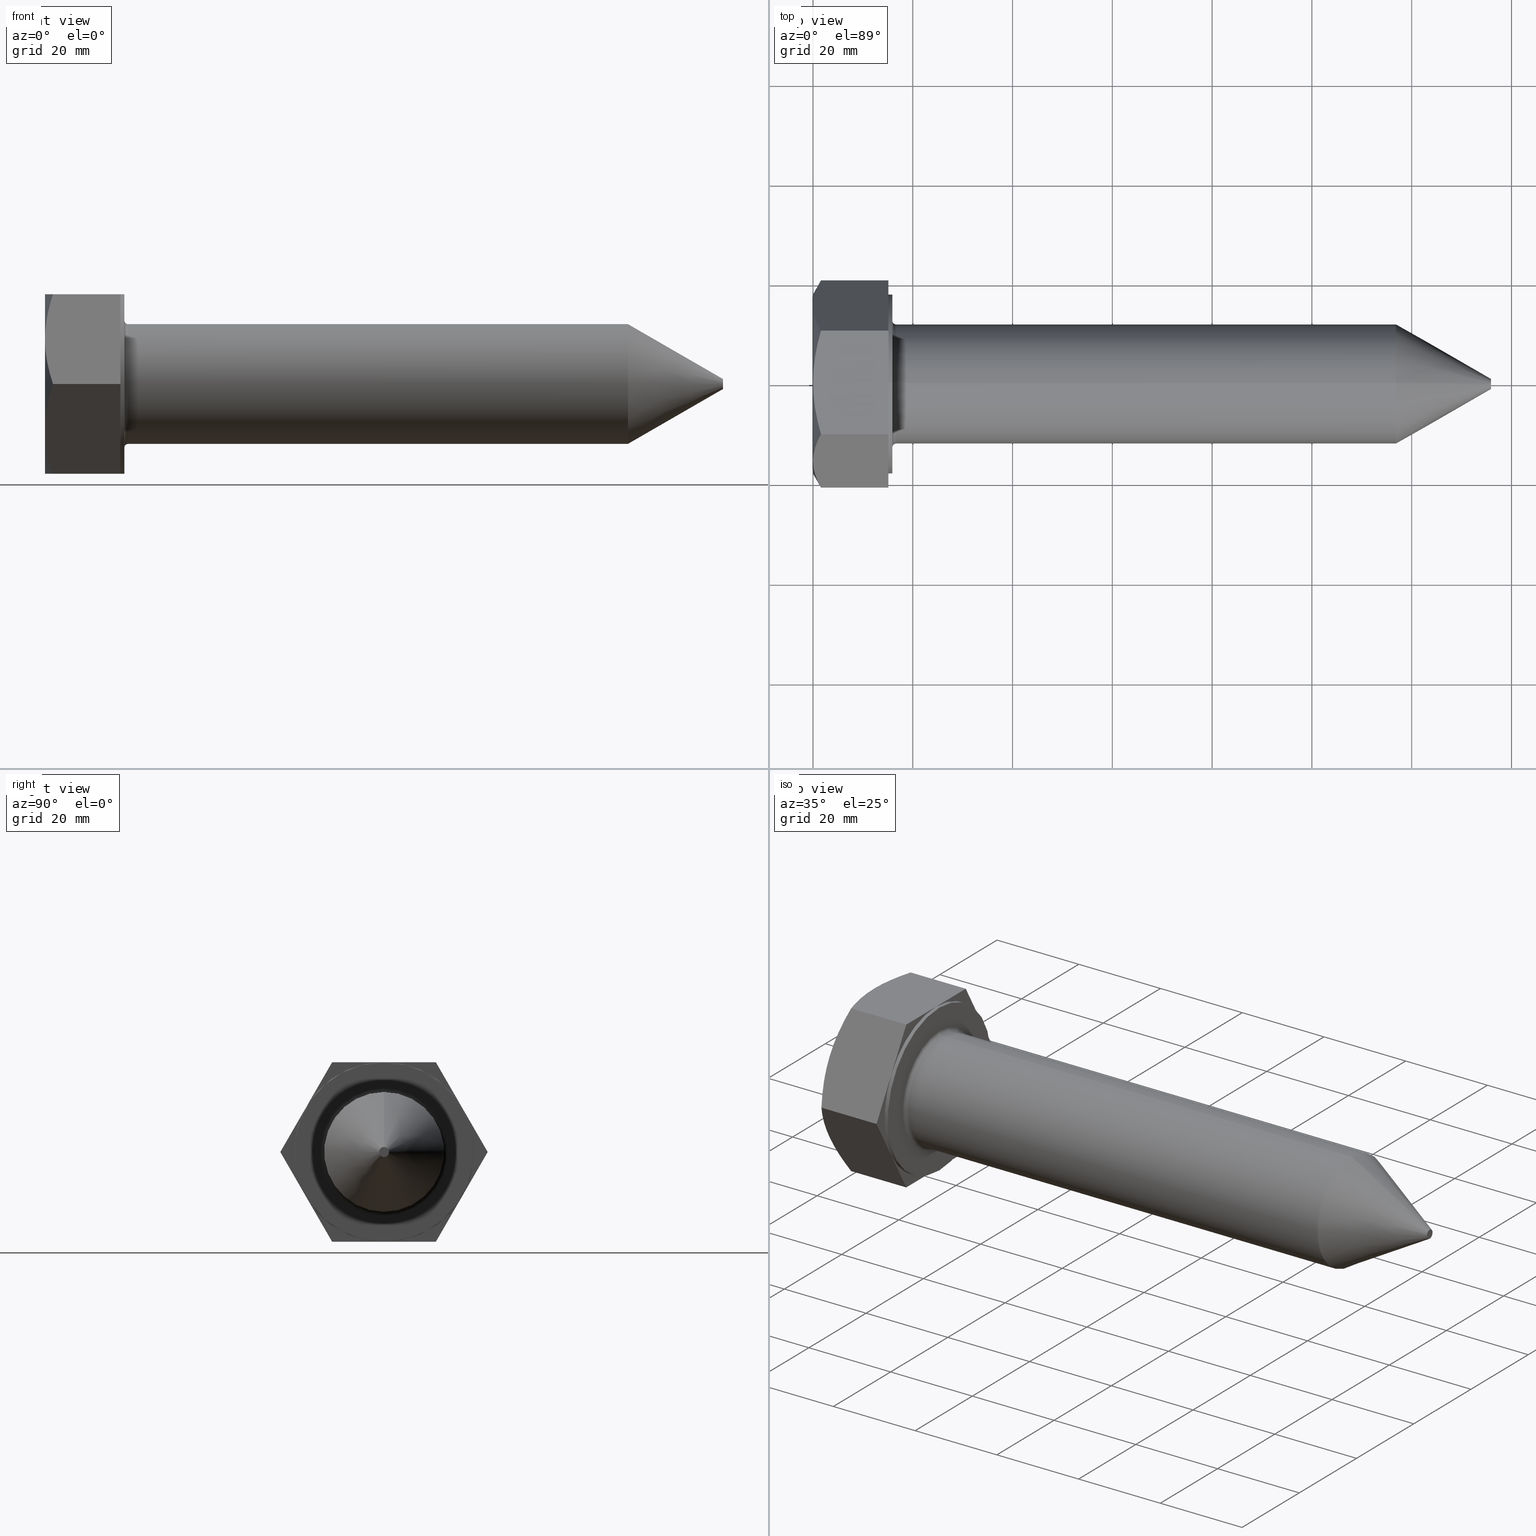
[diagram: canonical four-view strip — front | top / right | iso, engineering-drawing reading convention]
A machine part, canonical four-view strip (front | top / right | iso — engineering-drawing reading convention). The complete STEP part file that produces these views, byte-faithful:
ISO-10303-21;
HEADER;
FILE_DESCRIPTION (( 'STEP AP203' ),
    '1' );
FILE_NAME ('3997-35_REV_.step',
    '2026-02-22T19:54:50',
    ( '' ),
    ( '' ),
    'SwSTEP 2.0',
    'SolidWorks 2025',
    '' );
FILE_SCHEMA (( 'CONFIG_CONTROL_DESIGN' ));
ENDSEC;

DATA;
#1 = DIRECTION ( 'NONE',  ( -1.000000000000000000, -0.000000000000000000, -0.000000000000000000 ) ) ;
#2 = DIRECTION ( 'NONE',  ( 0.000000000000000000, -0.8660254037844381525, -0.5000000000000009992 ) ) ;
#3 = EDGE_LOOP ( 'NONE', ( #374, #663, #520 ) ) ;
#4 = CARTESIAN_POINT ( 'NONE',  ( 15.90000000000000036, -20.78460969082653520, 0.000000000000000000 ) ) ;
#5 = FACE_OUTER_BOUND ( 'NONE', #670, .T. ) ;
#6 = ORIENTED_EDGE ( 'NONE', *, *, #183, .T. ) ;
#7 = LINE ( 'NONE', #762, #64 ) ;
#8 = CARTESIAN_POINT ( 'NONE',  ( 0.000000000000000000, -15.58845726811987298, 9.000000000000035527 ) ) ;
#9 = EDGE_CURVE ( 'NONE', #559, #162, #381, .T. ) ;
#10 = APPROVAL ( #821, 'UNSPECIFIED' ) ;
#11 = VERTEX_POINT ( 'NONE', #793 ) ;
#12 = CONICAL_SURFACE ( 'NONE', #634, 18.00000000000000000, 1.047197551196600296 ) ;
#13 = CARTESIAN_POINT ( 'NONE',  ( 0.000000000000000000, 0.000000000000000000, -18.00000000000000000 ) ) ;
#14 = EDGE_CURVE ( 'NONE', #815, #11, #583, .T. ) ;
#15 = CARTESIAN_POINT ( 'NONE',  ( 0.1861329649104769279, 3.532202406795380334, 18.00000000000000000 ) ) ;
#16 = ORIENTED_EDGE ( 'NONE', *, *, #720, .F. ) ;
#17 = CIRCLE ( 'NONE', #597, 1.000000000000000000 ) ;
#18 = CARTESIAN_POINT ( 'NONE',  ( 0.07476367467994592120, 14.48545281793694528, -10.91045974869144075 ) ) ;
#19 = EDGE_CURVE ( 'NONE', #572, #489, #161, .T. ) ;
#20 = CC_DESIGN_APPROVAL ( #339, ( #402 ) ) ;
#21 = CARTESIAN_POINT ( 'NONE',  ( 15.10000000000000142, -20.78460969082653520, 0.000000000000000000 ) ) ;
#22 = CARTESIAN_POINT ( 'NONE',  ( 15.10000000000000142, 10.39230484541324984, 18.00000000000000000 ) ) ;
#23 = VERTEX_POINT ( 'NONE', #790 ) ;
#24 = DIRECTION ( 'NONE',  ( -1.000000000000000000, -0.000000000000000000, -0.000000000000000000 ) ) ;
#25 = LINE ( 'NONE', #444, #716 ) ;
#26 = CARTESIAN_POINT ( 'NONE',  ( 0.000000000000000000, 15.58845726811988364, -9.000000000000015987 ) ) ;
#27 = EDGE_CURVE ( 'NONE', #815, #740, #309, .T. ) ;
#28 = EDGE_LOOP ( 'NONE', ( #749, #556, #97, #736 ) ) ;
#29 = VECTOR ( 'NONE', #514, 1000.000000000000000 ) ;
#30 = VECTOR ( 'NONE', #242, 1000.000000000000114 ) ;
#31 = DIRECTION ( 'NONE',  ( -1.000000000000000000, -0.000000000000000000, -0.000000000000000000 ) ) ;
#32 = FACE_OUTER_BOUND ( 'NONE', #726, .T. ) ;
#33 = ORIENTED_EDGE ( 'NONE', *, *, #443, .T. ) ;
#34 = DIRECTION ( 'NONE',  ( 0.000000000000000000, 0.000000000000000000, 1.000000000000000000 ) ) ;
#35 = EDGE_CURVE ( 'NONE', #104, #707, #792, .T. ) ;
#36 = CARTESIAN_POINT ( 'NONE',  ( 1.116934336526962612, 19.93458701958329371, -1.472282454178709177 ) ) ;
#37 = APPLICATION_PROTOCOL_DEFINITION ( 'international standard', 'config_control_design', 1994, #545 ) ;
#38 = CARTESIAN_POINT ( 'NONE',  ( 0.000000000000000000, 0.000000000000000000, -18.00000000000000000 ) ) ;
#39 = ADVANCED_FACE ( 'NONE', ( #32 ), #12, .T. ) ;
#40 = ORIENTED_EDGE ( 'NONE', *, *, #19, .F. ) ;
#41 = PERSON_AND_ORGANIZATION ( #448, #797 ) ;
#42 = CIRCLE ( 'NONE', #146, 0.8000000000000003775 ) ;
#43 = AXIS2_PLACEMENT_3D ( 'NONE', #471, #524, #123 ) ;
#44 = EDGE_CURVE ( 'NONE', #214, #441, #783, .T. ) ;
#45 = CARTESIAN_POINT ( 'NONE',  ( 0.03745816183298698171, 1.762465172387031487, -18.00000000000000355 ) ) ;
#46 = ORIENTED_EDGE ( 'NONE', *, *, #523, .F. ) ;
#47 = SECURITY_CLASSIFICATION_LEVEL ( 'unclassified' ) ;
#48 = CARTESIAN_POINT ( 'NONE',  ( 15.10000000000000142, 0.000000000000000000, 0.000000000000000000 ) ) ;
#49 = ADVANCED_FACE ( 'NONE', ( #239 ), #587, .T. ) ;
#50 = DIRECTION ( 'NONE',  ( -1.000000000000000000, -0.000000000000000000, -0.000000000000000000 ) ) ;
#51 = ORIENTED_EDGE ( 'NONE', *, *, #695, .F. ) ;
#52 = PERSON_AND_ORGANIZATION_ROLE ( 'design_supplier' ) ;
#53 = B_SPLINE_CURVE_WITH_KNOTS ( 'NONE', 3,
 ( #839, #637, #145, #83, #564, #568 ),
 .UNSPECIFIED., .F., .F.,
 ( 4, 2, 4 ),
 ( 2.380728322783984379E-07, 0.005257893135091062063, 0.01051554819734984610 ),
 .UNSPECIFIED. ) ;
#54 = CARTESIAN_POINT ( 'NONE',  ( 15.10000000000000142, 18.00000000000000000, 0.000000000000000000 ) ) ;
#55 = CARTESIAN_POINT ( 'NONE',  ( 0.5705999791138118837, -6.103185995793361407, -18.00000000000000355 ) ) ;
#56 = ORIENTED_EDGE ( 'NONE', *, *, #698, .F. ) ;
#57 = CALENDAR_DATE ( 2026, 23, 2 ) ;
#58 = CARTESIAN_POINT ( 'NONE',  ( 0.000000000000000000, 0.000000000000000000, 0.000000000000000000 ) ) ;
#59 = CIRCLE ( 'NONE', #174, 18.00000000000000000 ) ;
#60 = DIRECTION ( 'NONE',  ( 0.000000000000000000, 0.000000000000000000, -1.000000000000000000 ) ) ;
#61 = AXIS2_PLACEMENT_3D ( 'NONE', #4, #285, #560 ) ;
#62 = EDGE_LOOP ( 'NONE', ( #602, #728, #74, #330, #832, #383 ) ) ;
#63 = CARTESIAN_POINT ( 'NONE',  ( 0.2939692054342115113, 17.78386138248274406, 5.197448530777799114 ) ) ;
#64 = VECTOR ( 'NONE', #1, 1000.000000000000000 ) ;
#65 = DIRECTION ( 'NONE',  ( 1.000000000000000000, 0.000000000000000000, -0.000000000000000000 ) ) ;
#66 = EDGE_LOOP ( 'NONE', ( #217, #354, #667, #346, #111, #535 ) ) ;
#67 = DATE_TIME_ROLE ( 'creation_date' ) ;
#68 = CARTESIAN_POINT ( 'NONE',  ( 0.7140392532422408234, 19.08173610902308681, 2.949463562550367790 ) ) ;
#69 = CARTESIAN_POINT ( 'NONE',  ( 1.607695154586711306, -10.39230484541321786, 17.99999999999999645 ) ) ;
#70 = ORIENTED_EDGE ( 'NONE', *, *, #316, .T. ) ;
#71 = DIRECTION ( 'NONE',  ( 0.000000000000000000, 0.000000000000000000, -1.000000000000000000 ) ) ;
#72 = CIRCLE ( 'NONE', #491, 18.00000000000000000 ) ;
#73 = LINE ( 'NONE', #414, #321 ) ;
#74 = ORIENTED_EDGE ( 'NONE', *, *, #183, .F. ) ;
#75 = DIRECTION ( 'NONE',  ( 0.000000000000000000, -1.000000000000000000, 0.000000000000000000 ) ) ;
#76 = CARTESIAN_POINT ( 'NONE',  ( 16.69999999999999929, 1.567547902908612184E-15, 12.80000000000000071 ) ) ;
#77 = VERTEX_POINT ( 'NONE', #165 ) ;
#78 = CARTESIAN_POINT ( 'NONE',  ( 0.000000000000000000, 0.000000000000000000, 0.000000000000000000 ) ) ;
#79 = CC_DESIGN_PERSON_AND_ORGANIZATION_ASSIGNMENT ( #722, #656, ( #420 ) ) ;
#80 = FACE_OUTER_BOUND ( 'NONE', #509, .T. ) ;
#81 = ORIENTED_EDGE ( 'NONE', *, *, #590, .F. ) ;
#82 = EDGE_CURVE ( 'NONE', #232, #815, #436, .T. ) ;
#83 = CARTESIAN_POINT ( 'NONE',  ( 0.1532218116813510445, -17.34799259689862438, 5.952395412842812483 ) ) ;
#84 = DIRECTION ( 'NONE',  ( 1.000000000000000000, 0.000000000000000000, 0.000000000000000000 ) ) ;
#85 = VECTOR ( 'NONE', #696, 999.9999999999998863 ) ;
#86 = CARTESIAN_POINT ( 'NONE',  ( 15.10000000000000142, -20.78460969082653520, 0.000000000000000000 ) ) ;
#87 = EDGE_CURVE ( 'NONE', #11, #563, #701, .T. ) ;
#88 = AXIS2_PLACEMENT_3D ( 'NONE', #739, #674, #60 ) ;
#89 = CARTESIAN_POINT ( 'NONE',  ( 15.10000000000000142, 0.000000000000000000, 0.000000000000000000 ) ) ;
#90 = DIRECTION ( 'NONE',  ( -1.000000000000000000, -0.000000000000000000, -0.000000000000000000 ) ) ;
#91 = CARTESIAN_POINT ( 'NONE',  ( 15.10000000000000142, 0.000000000000000000, 0.000000000000000000 ) ) ;
#92 = AXIS2_PLACEMENT_3D ( 'NONE', #470, #738, #774 ) ;
#93 = ORIENTED_EDGE ( 'NONE', *, *, #9, .T. ) ;
#94 = PLANE ( 'NONE',  #718 ) ;
#95 = DIRECTION ( 'NONE',  ( 1.000000000000000000, 0.000000000000000000, 0.000000000000000000 ) ) ;
#96 = CARTESIAN_POINT ( 'NONE',  ( 1.607695154586733288, 20.78460969082653875, -6.346128024229726235E-16 ) ) ;
#97 = ORIENTED_EDGE ( 'NONE', *, *, #695, .T. ) ;
#98 = CARTESIAN_POINT ( 'NONE',  ( -9.833111369903254396E-16, -1.757439789148936171, 17.99999999999999289 ) ) ;
#99 = CARTESIAN_POINT ( 'NONE',  ( 15.10000000000000142, 10.39230484541324806, -18.00000000000000000 ) ) ;
#100 = ORIENTED_EDGE ( 'NONE', *, *, #533, .T. ) ;
#101 = CARTESIAN_POINT ( 'NONE',  ( 0.000000000000000000, -15.58845726811987298, 9.000000000000035527 ) ) ;
#102 = VECTOR ( 'NONE', #175, 1000.000000000000000 ) ;
#103 = CARTESIAN_POINT ( 'NONE',  ( 15.90000000000000036, 2.204364238465235428E-15, -18.00000000000000000 ) ) ;
#104 = VERTEX_POINT ( 'NONE', #636 ) ;
#105 = FACE_OUTER_BOUND ( 'NONE', #458, .T. ) ;
#106 = EDGE_CURVE ( 'NONE', #740, #452, #464, .T. ) ;
#107 = EDGE_CURVE ( 'NONE', #591, #847, #418, .T. ) ;
#108 = CC_DESIGN_DATE_AND_TIME_ASSIGNMENT ( #257, #469, ( #373 ) ) ;
#109 = APPROVAL_PERSON_ORGANIZATION ( #200, #10, #881 ) ;
#110 = CARTESIAN_POINT ( 'NONE',  ( 15.10000000000000142, 10.39230484541324984, 18.00000000000000000 ) ) ;
#111 = ORIENTED_EDGE ( 'NONE', *, *, #284, .F. ) ;
#112 = CARTESIAN_POINT ( 'NONE',  ( 0.7186714481883526018, 7.009429243568278345, -17.99999999999999645 ) ) ;
#113 = EDGE_LOOP ( 'NONE', ( #693, #222, #81, #837, #655, #144 ) ) ;
#114 = ADVANCED_FACE ( 'NONE', ( #713 ), #191, .T. ) ;
#115 = CARTESIAN_POINT ( 'NONE',  ( 16.69999999999999929, 0.000000000000000000, 0.000000000000000000 ) ) ;
#116 = CIRCLE ( 'NONE', #148, 12.00000000000000000 ) ;
#117 = DIRECTION ( 'NONE',  ( 0.000000000000000000, 0.000000000000000000, -1.000000000000000000 ) ) ;
#118 = EDGE_CURVE ( 'NONE', #559, #452, #641, .T. ) ;
#119 = ORIENTED_EDGE ( 'NONE', *, *, #742, .T. ) ;
#120 = APPROVAL_ROLE ( '' ) ;
#121 = DIRECTION ( 'NONE',  ( 0.000000000000000000, 0.000000000000000000, -1.000000000000000000 ) ) ;
#122 = EDGE_CURVE ( 'NONE', #441, #559, #719, .T. ) ;
#123 = DIRECTION ( 'NONE',  ( 0.000000000000000000, 0.000000000000000000, -1.000000000000000000 ) ) ;
#124 = LOCAL_TIME ( 6, 54, 50.00000000000000000, #671 ) ;
#125 = VERTEX_POINT ( 'NONE', #103 ) ;
#126 = ADVANCED_FACE ( 'NONE', ( #385 ), #317, .F. ) ;
#127 = DIRECTION ( 'NONE',  ( 0.000000000000000000, 0.000000000000000000, -1.000000000000000000 ) ) ;
#128 = LINE ( 'NONE', #805, #649 ) ;
#129 = VERTEX_POINT ( 'NONE', #178 ) ;
#130 = COORDINATED_UNIVERSAL_TIME_OFFSET ( 10, 0, .AHEAD. ) ;
#131 = ADVANCED_FACE ( 'NONE', ( #669 ), #658, .T. ) ;
#132 = DIRECTION ( 'NONE',  ( 0.000000000000000000, -0.5000000000000009992, 0.8660254037844381525 ) ) ;
#133 = VECTOR ( 'NONE', #236, 1000.000000000000000 ) ;
#134 = FACE_OUTER_BOUND ( 'NONE', #551, .T. ) ;
#135 = ORIENTED_EDGE ( 'NONE', *, *, #106, .T. ) ;
#136 = CARTESIAN_POINT ( 'NONE',  ( 0.000000000000000000, 15.58845726811988541, 9.000000000000014211 ) ) ;
#137 = CIRCLE ( 'NONE', #484, 0.8000000000000003775 ) ;
#138 = CARTESIAN_POINT ( 'NONE',  ( 15.90000000000000036, 0.000000000000000000, -12.80000000000000071 ) ) ;
#139 = PRODUCT_DEFINITION_FORMATION_WITH_SPECIFIED_SOURCE ( 'ANY', '', #420, .NOT_KNOWN. ) ;
#140 = ORIENTED_EDGE ( 'NONE', *, *, #379, .F. ) ;
#141 = B_SPLINE_CURVE_WITH_KNOTS ( 'NONE', 3,
 ( #342, #328, #813, #142, #741, #610, #201, #267, #882, #474 ),
 .UNSPECIFIED., .F., .F.,
 ( 4, 2, 2, 2, 4 ),
 ( 0.01051554819734979752, 0.01182504667393344429, 0.01313454515051709279, 0.01575354210368439326, 0.02099153601001899419 ),
 .UNSPECIFIED. ) ;
#142 = CARTESIAN_POINT ( 'NONE',  ( 0.04683108270948572321, -16.47166422291242327, -7.470240680701145664 ) ) ;
#143 = CARTESIAN_POINT ( 'NONE',  ( 0.000000000000000000, 0.000000000000000000, 0.000000000000000000 ) ) ;
#144 = ORIENTED_EDGE ( 'NONE', *, *, #525, .F. ) ;
#145 = CARTESIAN_POINT ( 'NONE',  ( 0.7126204852947248813, -19.07835557137324400, 2.955318825516787040 ) ) ;
#146 = AXIS2_PLACEMENT_3D ( 'NONE', #76, #628, #615 ) ;
#147 = DIRECTION ( 'NONE',  ( 0.000000000000000000, 0.4999999999999998335, -0.8660254037844388186 ) ) ;
#148 = AXIS2_PLACEMENT_3D ( 'NONE', #255, #534, #727 ) ;
#149 = EDGE_LOOP ( 'NONE', ( #472, #256, #405, #51 ) ) ;
#150 = CARTESIAN_POINT ( 'NONE',  ( 15.10000000000000142, 15.58845726811988719, 9.000000000000015987 ) ) ;
#151 = LINE ( 'NONE', #763, #819 ) ;
#152 = ADVANCED_FACE ( 'NONE', ( #734 ), #340, .F. ) ;
#153 = ORIENTED_EDGE ( 'NONE', *, *, #883, .F. ) ;
#154 = FACE_OUTER_BOUND ( 'NONE', #828, .T. ) ;
#155 = EDGE_CURVE ( 'NONE', #23, #129, #116, .T. ) ;
#156 = CARTESIAN_POINT ( 'NONE',  ( 0.1511496491369540007, -3.502203439732907597, 17.99999999999999645 ) ) ;
#157 = EDGE_LOOP ( 'NONE', ( #616, #93, #620, #287, #46, #153 ) ) ;
#158 = DIRECTION ( 'NONE',  ( 0.000000000000000000, 0.000000000000000000, 1.000000000000000000 ) ) ;
#159 = CARTESIAN_POINT ( 'NONE',  ( 0.000000000000000000, -3.004629197474327134E-15, 18.00000000000000000 ) ) ;
#160 = DIRECTION ( 'NONE',  ( -1.000000000000000000, -0.000000000000000000, -0.000000000000000000 ) ) ;
#161 = CIRCLE ( 'NONE', #689, 12.00000000000000000 ) ;
#162 = VERTEX_POINT ( 'NONE', #268 ) ;
#163 = DIRECTION ( 'NONE',  ( 0.000000000000000000, 0.000000000000000000, -1.000000000000000000 ) ) ;
#164 = DIRECTION ( 'NONE',  ( 0.000000000000000000, 1.000000000000000000, 1.669238443041292852E-16 ) ) ;
#165 = CARTESIAN_POINT ( 'NONE',  ( 15.90000000000000036, 1.567547902908612184E-15, 12.80000000000000071 ) ) ;
#166 = ORIENTED_EDGE ( 'NONE', *, *, #209, .F. ) ;
#167 = CARTESIAN_POINT ( 'NONE',  ( 15.10000000000000142, 0.000000000000000000, 18.00000000000000000 ) ) ;
#168 = FACE_OUTER_BOUND ( 'NONE', #62, .T. ) ;
#169 = ORIENTED_EDGE ( 'NONE', *, *, #688, .T. ) ;
#170 = ORIENTED_EDGE ( 'NONE', *, *, #657, .F. ) ;
#171 = CARTESIAN_POINT ( 'NONE',  ( 15.10000000000000142, 10.39230484541324806, -18.00000000000000000 ) ) ;
#172 = FACE_OUTER_BOUND ( 'NONE', #28, .T. ) ;
#173 = DIRECTION ( 'NONE',  ( 0.000000000000000000, 0.000000000000000000, -1.000000000000000000 ) ) ;
#174 = AXIS2_PLACEMENT_3D ( 'NONE', #757, #752, #196 ) ;
#175 = DIRECTION ( 'NONE',  ( -1.000000000000000000, -0.000000000000000000, -0.000000000000000000 ) ) ;
#176 = CC_DESIGN_PERSON_AND_ORGANIZATION_ASSIGNMENT ( #261, #477, ( #139 ) ) ;
#177 = AXIS2_PLACEMENT_3D ( 'NONE', #780, #218, #575 ) ;
#178 = CARTESIAN_POINT ( 'NONE',  ( 16.69999999999999929, 1.469576158976823947E-15, -12.00000000000000000 ) ) ;
#179 = EDGE_CURVE ( 'NONE', #500, #578, #128, .T. ) ;
#180 = EDGE_LOOP ( 'NONE', ( #468, #858, #806, #482, #313, #260 ) ) ;
#181 = AXIS2_PLACEMENT_3D ( 'NONE', #554, #808, #121 ) ;
#182 = CC_DESIGN_APPROVAL ( #10, ( #373 ) ) ;
#183 = EDGE_CURVE ( 'NONE', #707, #732, #277, .T. ) ;
#184 = CARTESIAN_POINT ( 'NONE',  ( 1.116934336526962612, -11.24232751665651264, -16.52771754582129660 ) ) ;
#185 = ORIENTED_EDGE ( 'NONE', *, *, #122, .T. ) ;
#186 = DIRECTION ( 'NONE',  ( 0.000000000000000000, 0.000000000000000000, 1.000000000000000000 ) ) ;
#187 = DIRECTION ( 'NONE',  ( 0.000000000000000000, -0.8660254037844380415, 0.5000000000000009992 ) ) ;
#188 = VERTEX_POINT ( 'NONE', #605 ) ;
#189 = CIRCLE ( 'NONE', #262, 1.000000000000000000 ) ;
#190 = CARTESIAN_POINT ( 'NONE',  ( 135.9000000000000057, 0.000000000000000000, 1.000000000000000000 ) ) ;
#191 = CONICAL_SURFACE ( 'NONE', #537, 1.000000000000000000, 0.5235987755982927094 ) ;
#192 = CARTESIAN_POINT ( 'NONE',  ( 1.067261513540418427E-16, -1.757439789148945941, -18.00000000000000355 ) ) ;
#193 = EDGE_CURVE ( 'NONE', #895, #607, #700, .T. ) ;
#194 = EDGE_LOOP ( 'NONE', ( #756, #843, #70 ) ) ;
#195 = CALENDAR_DATE ( 2026, 23, 2 ) ;
#196 = DIRECTION ( 'NONE',  ( 0.000000000000000000, 0.000000000000000000, -1.000000000000000000 ) ) ;
#197 = CARTESIAN_POINT ( 'NONE',  ( 0.1532218116813630071, -13.82892193934115888, -12.04760458715720084 ) ) ;
#198 = EDGE_CURVE ( 'NONE', #303, #77, #747, .T. ) ;
#199 = VERTEX_POINT ( 'NONE', #466 ) ;
#200 = PERSON_AND_ORGANIZATION ( #448, #797 ) ;
#201 = CARTESIAN_POINT ( 'NONE',  ( 0.2939692054342168959, -17.78386138248275472, -5.197448530777792897 ) ) ;
#202 = CARTESIAN_POINT ( 'NONE',  ( 0.1850551574587440407, -13.82825457289346716, 12.04876049975180052 ) ) ;
#203 = ORIENTED_EDGE ( 'NONE', *, *, #290, .T. ) ;
#204 = DATE_AND_TIME ( #347, #640 ) ;
#205 = CARTESIAN_POINT ( 'NONE',  ( 1.607695154586733288, 20.78460969082653875, -6.346128024229726235E-16 ) ) ;
#206 = VECTOR ( 'NONE', #132, 999.9999999999998863 ) ;
#207 = AXIS2_PLACEMENT_3D ( 'NONE', #831, #550, #753 ) ;
#208 = DIRECTION ( 'NONE',  ( 1.000000000000000000, 0.000000000000000000, 0.000000000000000000 ) ) ;
#209 = EDGE_CURVE ( 'NONE', #595, #874, #518, .T. ) ;
#210 = ORIENTED_EDGE ( 'NONE', *, *, #618, .T. ) ;
#211 = DIRECTION ( 'NONE',  ( -1.000000000000000000, -0.000000000000000000, -0.000000000000000000 ) ) ;
#212 = CIRCLE ( 'NONE', #638, 18.00000000000000000 ) ;
#213 = CARTESIAN_POINT ( 'NONE',  ( 0.2939692054342004646, -13.39305315375700900, 12.80255146922222131 ) ) ;
#214 = VERTEX_POINT ( 'NONE', #398 ) ;
#215 = LINE ( 'NONE', #422, #226 ) ;
#216 = DIRECTION ( 'NONE',  ( 0.000000000000000000, 0.5000000000000008882, -0.8660254037844380415 ) ) ;
#217 = ORIENTED_EDGE ( 'NONE', *, *, #82, .F. ) ;
#218 = DIRECTION ( 'NONE',  ( 1.000000000000000000, 0.000000000000000000, -0.000000000000000000 ) ) ;
#219 = AXIS2_PLACEMENT_3D ( 'NONE', #143, #65, #353 ) ;
#220 = DIRECTION ( 'NONE',  ( -0.000000000000000000, 0.000000000000000000, -1.000000000000000000 ) ) ;
#221 = CIRCLE ( 'NONE', #177, 18.00000000000000000 ) ;
#222 = ORIENTED_EDGE ( 'NONE', *, *, #735, .T. ) ;
#223 = DIRECTION ( 'NONE',  ( 0.000000000000000000, 0.000000000000000000, 1.000000000000000000 ) ) ;
#224 = UNCERTAINTY_MEASURE_WITH_UNIT (LENGTH_MEASURE( 1.000000000000000082E-05 ), #849, 'distance_accuracy_value', 'NONE');
#225 = FACE_OUTER_BOUND ( 'NONE', #194, .T. ) ;
#226 = VECTOR ( 'NONE', #487, 999.9999999999998863 ) ;
#227 = ORIENTED_EDGE ( 'NONE', *, *, #365, .T. ) ;
#228 =( GEOMETRIC_REPRESENTATION_CONTEXT ( 3 ) GLOBAL_UNCERTAINTY_ASSIGNED_CONTEXT ( ( #224 ) ) GLOBAL_UNIT_ASSIGNED_CONTEXT ( ( #849, #859, #387 ) ) REPRESENTATION_CONTEXT ( 'NONE', 'WORKASPACE' ) );
#229 = CARTESIAN_POINT ( 'NONE',  ( 15.90000000000000036, 0.000000000000000000, 0.000000000000000000 ) ) ;
#230 = PLANE ( 'NONE',  #804 ) ;
#231 = DIRECTION ( 'NONE',  ( 0.000000000000000000, 1.000000000000000000, -0.000000000000000000 ) ) ;
#232 = VERTEX_POINT ( 'NONE', #110 ) ;
#233 = PLANE ( 'NONE',  #61 ) ;
#234 = CARTESIAN_POINT ( 'NONE',  ( 0.000000000000000000, 0.000000000000000000, 0.000000000000000000 ) ) ;
#235 = CIRCLE ( 'NONE', #660, 18.00000000000000000 ) ;
#236 = DIRECTION ( 'NONE',  ( 0.000000000000000000, -1.000000000000000000, -1.669238443041292852E-16 ) ) ;
#237 = ORIENTED_EDGE ( 'NONE', *, *, #743, .T. ) ;
#238 = FACE_OUTER_BOUND ( 'NONE', #66, .T. ) ;
#239 = FACE_OUTER_BOUND ( 'NONE', #446, .T. ) ;
#240 = ORIENTED_EDGE ( 'NONE', *, *, #742, .F. ) ;
#241 = CARTESIAN_POINT ( 'NONE',  ( 15.10000000000000142, -20.78460969082653520, 0.000000000000000000 ) ) ;
#242 = DIRECTION ( 'NONE',  ( 0.000000000000000000, -0.5000000000000018874, -0.8660254037844374864 ) ) ;
#243 = ADVANCED_FACE ( 'NONE', ( #873 ), #544, .T. ) ;
#244 = EDGE_CURVE ( 'NONE', #732, #104, #723, .T. ) ;
#245 = ORIENTED_EDGE ( 'NONE', *, *, #764, .T. ) ;
#246 = DIRECTION ( 'NONE',  ( 0.000000000000000000, 0.000000000000000000, -1.000000000000000000 ) ) ;
#247 = EDGE_CURVE ( 'NONE', #129, #23, #877, .T. ) ;
#248 = DIRECTION ( 'NONE',  ( 0.000000000000000000, 0.000000000000000000, 1.000000000000000000 ) ) ;
#249 = ORIENTED_EDGE ( 'NONE', *, *, #290, .F. ) ;
#250 = FACE_OUTER_BOUND ( 'NONE', #180, .T. ) ;
#251 = VECTOR ( 'NONE', #451, 1000.000000000000000 ) ;
#252 = DIRECTION ( 'NONE',  ( 0.000000000000000000, 0.000000000000000000, -1.000000000000000000 ) ) ;
#253 = ORIENTED_EDGE ( 'NONE', *, *, #316, .F. ) ;
#254 = MECHANICAL_CONTEXT ( 'NONE', #454, 'mechanical' ) ;
#255 = CARTESIAN_POINT ( 'NONE',  ( 16.69999999999999929, 0.000000000000000000, 0.000000000000000000 ) ) ;
#256 = ORIENTED_EDGE ( 'NONE', *, *, #343, .T. ) ;
#257 = DATE_AND_TIME ( #57, #124 ) ;
#258 = CARTESIAN_POINT ( 'NONE',  ( 1.607695154586731512, -20.78460969082653520, -6.189267279696335278E-16 ) ) ;
#259 = DIRECTION ( 'NONE',  ( -0.000000000000000000, 0.000000000000000000, 1.000000000000000000 ) ) ;
#260 = ORIENTED_EDGE ( 'NONE', *, *, #515, .F. ) ;
#261 = PERSON_AND_ORGANIZATION ( #448, #797 ) ;
#262 = AXIS2_PLACEMENT_3D ( 'NONE', #668, #348, #617 ) ;
#263 = PLANE ( 'NONE',  #92 ) ;
#264 = EDGE_CURVE ( 'NONE', #162, #707, #822, .T. ) ;
#265 = DIRECTION ( 'NONE',  ( 0.000000000000000000, -0.5000000000000009992, -0.8660254037844380415 ) ) ;
#266 = EDGE_LOOP ( 'NONE', ( #527, #890, #825 ) ) ;
#267 = CARTESIAN_POINT ( 'NONE',  ( 0.7140392532422440430, -19.08173610902308326, -2.949463562550363349 ) ) ;
#268 = CARTESIAN_POINT ( 'NONE',  ( 1.607695154586722630, 10.39230484541324806, -18.00000000000000000 ) ) ;
#269 = ORIENTED_EDGE ( 'NONE', *, *, #155, .T. ) ;
#270 = PERSON_AND_ORGANIZATION ( #448, #797 ) ;
#271 = ADVANCED_FACE ( 'NONE', ( #360 ), #769, .T. ) ;
#272 = CARTESIAN_POINT ( 'NONE',  ( 1.607695154586733288, 20.78460969082653875, -6.346128024229726235E-16 ) ) ;
#273 = PLANE ( 'NONE',  #336 ) ;
#274 = EDGE_LOOP ( 'NONE', ( #119, #245, #326 ) ) ;
#275 = CARTESIAN_POINT ( 'NONE',  ( 7.146840492458156646E-17, 15.80894714424574055, 8.618100331995465879 ) ) ;
#276 = CONICAL_SURFACE ( 'NONE', #593, 18.00000000000000000, 1.047197551196600296 ) ;
#277 = B_SPLINE_CURVE_WITH_KNOTS ( 'NONE', 3,
 ( #38, #192, #395, #55, #455, #332, #596, #388 ),
 .UNSPECIFIED., .F., .F.,
 ( 4, 2, 2, 4 ),
 ( 0.05762008783732745776, 0.06288214475430679851, 0.06551317321279646888, 0.06814420167128613925 ),
 .UNSPECIFIED. ) ;
#278 = ADVANCED_FACE ( 'NONE', ( #134 ), #824, .T. ) ;
#279 = DIRECTION ( 'NONE',  ( 0.000000000000000000, 0.000000000000000000, 1.000000000000000000 ) ) ;
#280 = ORIENTED_EDGE ( 'NONE', *, *, #179, .T. ) ;
#281 = DIRECTION ( 'NONE',  ( 1.000000000000000000, 0.000000000000000000, -0.000000000000000000 ) ) ;
#282 = DIRECTION ( 'NONE',  ( 1.000000000000000000, 0.000000000000000000, -0.000000000000000000 ) ) ;
#283 = ORIENTED_EDGE ( 'NONE', *, *, #720, .T. ) ;
#284 = EDGE_CURVE ( 'NONE', #11, #188, #889, .T. ) ;
#285 = DIRECTION ( 'NONE',  ( 0.000000000000000000, 0.8660254037844375974, -0.5000000000000019984 ) ) ;
#286 = CARTESIAN_POINT ( 'NONE',  ( 1.118160017449559396, -11.24020457502480141, 16.53139458858883515 ) ) ;
#287 = ORIENTED_EDGE ( 'NONE', *, *, #107, .F. ) ;
#288 = B_SPLINE_CURVE_WITH_KNOTS ( 'NONE', 3,
 ( #8, #555, #494, #291, #356, #202, #213, #814, #286, #69 ),
 .UNSPECIFIED., .F., .F.,
 ( 4, 2, 2, 2, 4 ),
 ( 0.01051554819734984610, 0.01182504667393349633, 0.01313454515051714483, 0.01575354210368443836, 0.02099153601001902542 ),
 .UNSPECIFIED. ) ;
#289 = FACE_OUTER_BOUND ( 'NONE', #149, .T. ) ;
#290 = EDGE_CURVE ( 'NONE', #874, #188, #288, .T. ) ;
#291 = CARTESIAN_POINT ( 'NONE',  ( 0.04683108270947267116, -14.70525031332732979, 10.52975931929887032 ) ) ;
#292 = VECTOR ( 'NONE', #24, 1000.000000000000000 ) ;
#293 = EDGE_LOOP ( 'NONE', ( #421, #280, #721, #773, #588, #170 ) ) ;
#294 = DIRECTION ( 'NONE',  ( 0.000000000000000000, 0.000000000000000000, -1.000000000000000000 ) ) ;
#295 = DIRECTION ( 'NONE',  ( 1.000000000000000000, 0.000000000000000000, -0.000000000000000000 ) ) ;
#296 = AXIS2_PLACEMENT_3D ( 'NONE', #229, #429, #294 ) ;
#297 = DIRECTION ( 'NONE',  ( -1.000000000000000000, -0.000000000000000000, -0.000000000000000000 ) ) ;
#298 = EDGE_LOOP ( 'NONE', ( #100, #546, #56 ) ) ;
#299 = DIRECTION ( 'NONE',  ( -1.000000000000000000, -0.000000000000000000, -0.000000000000000000 ) ) ;
#300 = CARTESIAN_POINT ( 'NONE',  ( 15.10000000000000142, 0.000000000000000000, 0.000000000000000000 ) ) ;
#301 = EDGE_CURVE ( 'NONE', #500, #199, #151, .T. ) ;
#302 = DIRECTION ( 'NONE',  ( -1.000000000000000000, -0.000000000000000000, -0.000000000000000000 ) ) ;
#303 = VERTEX_POINT ( 'NONE', #138 ) ;
#304 = CARTESIAN_POINT ( 'NONE',  ( 135.9000000000000057, 7.960204194457797449E-16, -1.000000000000000000 ) ) ;
#305 = CARTESIAN_POINT ( 'NONE',  ( 0.000000000000000000, 0.000000000000000000, 18.00000000000000000 ) ) ;
#306 = EDGE_CURVE ( 'NONE', #232, #895, #678, .T. ) ;
#307 = VECTOR ( 'NONE', #746, 1000.000000000000000 ) ;
#308 = CARTESIAN_POINT ( 'NONE',  ( 15.90000000000000036, 10.39230484541324806, -18.00000000000000000 ) ) ;
#309 = CIRCLE ( 'NONE', #492, 18.00000000000000000 ) ;
#310 = ORIENTED_EDGE ( 'NONE', *, *, #467, .F. ) ;
#311 = CARTESIAN_POINT ( 'NONE',  ( 0.2962297688443727983, 4.407606553784678916, 18.00000000000000000 ) ) ;
#312 = DIRECTION ( 'NONE',  ( 0.000000000000000000, 1.000000000000000000, -0.000000000000000000 ) ) ;
#313 = ORIENTED_EDGE ( 'NONE', *, *, #459, .F. ) ;
#314 = LINE ( 'NONE', #642, #292 ) ;
#315 = EDGE_CURVE ( 'NONE', #350, #740, #73, .T. ) ;
#316 = EDGE_CURVE ( 'NONE', #847, #607, #478, .T. ) ;
#317 = PLANE ( 'NONE',  #661 ) ;
#318 = ORIENTED_EDGE ( 'NONE', *, *, #585, .F. ) ;
#319 = APPROVAL_STATUS ( 'not_yet_approved' ) ;
#320 = CARTESIAN_POINT ( 'NONE',  ( 1.116934336526954841, 11.24232751665648600, 16.52771754582129660 ) ) ;
#321 = VECTOR ( 'NONE', #619, 999.9999999999998863 ) ;
#322 = ORIENTED_EDGE ( 'NONE', *, *, #764, .F. ) ;
#323 = DIRECTION ( 'NONE',  ( -1.000000000000000000, -0.000000000000000000, -0.000000000000000000 ) ) ;
#324 = AXIS2_PLACEMENT_3D ( 'NONE', #710, #519, #173 ) ;
#325 = CARTESIAN_POINT ( 'NONE',  ( 15.10000000000000142, 18.00000000000000000, 0.000000000000000000 ) ) ;
#326 = ORIENTED_EDGE ( 'NONE', *, *, #601, .T. ) ;
#327 = SHAPE_DEFINITION_REPRESENTATION ( #549, #650 ) ;
#328 = CARTESIAN_POINT ( 'NONE',  ( 6.524588913581468724E-15, -15.80894714424576541, -8.618100331995455221 ) ) ;
#329 = DIRECTION ( 'NONE',  ( -1.000000000000000000, 0.000000000000000000, -0.000000000000000000 ) ) ;
#330 = ORIENTED_EDGE ( 'NONE', *, *, #264, .F. ) ;
#331 = DIRECTION ( 'NONE',  ( 1.000000000000000000, 0.000000000000000000, 0.000000000000000000 ) ) ;
#332 = CARTESIAN_POINT ( 'NONE',  ( 1.139104001433382640, -8.691668190334304711, -18.00000000000000355 ) ) ;
#333 = ORIENTED_EDGE ( 'NONE', *, *, #404, .F. ) ;
#334 = APPROVAL_DATE_TIME ( #547, #339 ) ;
#335 = B_SPLINE_CURVE_WITH_KNOTS ( 'NONE', 3,
 ( #358, #630, #351, #834, #18, #505, #501, #829, #702, #690 ),
 .UNSPECIFIED., .F., .F.,
 ( 4, 2, 2, 2, 4 ),
 ( 0.01051554819734982701, 0.01182504667393347551, 0.01313454515051712401, 0.01575354210368442101, 0.02099153601001901501 ),
 .UNSPECIFIED. ) ;
#336 = AXIS2_PLACEMENT_3D ( 'NONE', #561, #2, #216 ) ;
#337 = CARTESIAN_POINT ( 'NONE',  ( 116.8474411167420755, 1.469576158976823947E-15, -12.00000000000000000 ) ) ;
#338 = AXIS2_PLACEMENT_3D ( 'NONE', #579, #453, #34 ) ;
#339 = APPROVAL ( #319, 'UNSPECIFIED' ) ;
#340 = PLANE ( 'NONE',  #582 ) ;
#341 = ORIENTED_EDGE ( 'NONE', *, *, #27, .T. ) ;
#342 = CARTESIAN_POINT ( 'NONE',  ( 0.000000000000000000, -15.58845726811989607, -8.999999999999996447 ) ) ;
#343 = EDGE_CURVE ( 'NONE', #23, #77, #42, .T. ) ;
#344 = APPROVAL_PERSON_ORGANIZATION ( #871, #653, #120 ) ;
#345 = CARTESIAN_POINT ( 'NONE',  ( 15.10000000000000142, 20.78460969082653875, 0.000000000000000000 ) ) ;
#346 = ORIENTED_EDGE ( 'NONE', *, *, #443, .F. ) ;
#347 = CALENDAR_DATE ( 2026, 23, 2 ) ;
#348 = DIRECTION ( 'NONE',  ( -1.000000000000000000, -0.000000000000000000, -0.000000000000000000 ) ) ;
#349 = CARTESIAN_POINT ( 'NONE',  ( 0.000000000000000000, 0.000000000000000000, -18.00000000000000000 ) ) ;
#350 = VERTEX_POINT ( 'NONE', #345 ) ;
#351 = CARTESIAN_POINT ( 'NONE',  ( 0.009429105422158854874, 15.14637444941021904, -9.765709903158406036 ) ) ;
#352 = TOROIDAL_SURFACE ( 'NONE', #450, 12.80000000000000071, 0.8000000000000000444 ) ;
#353 = DIRECTION ( 'NONE',  ( 0.000000000000000000, 0.000000000000000000, -1.000000000000000000 ) ) ;
#354 = ORIENTED_EDGE ( 'NONE', *, *, #306, .T. ) ;
#355 = DIRECTION ( 'NONE',  ( -1.000000000000000000, -0.000000000000000000, -0.000000000000000000 ) ) ;
#356 = CARTESIAN_POINT ( 'NONE',  ( 0.07476367467993630389, -14.48545281793691686, 10.91045974869144786 ) ) ;
#357 = EDGE_LOOP ( 'NONE', ( #687, #237 ) ) ;
#358 = CARTESIAN_POINT ( 'NONE',  ( 0.000000000000000000, 15.58845726811988364, -9.000000000000015987 ) ) ;
#359 = ADVANCED_FACE ( 'NONE', ( #5 ), #273, .F. ) ;
#360 = FACE_OUTER_BOUND ( 'NONE', #113, .T. ) ;
#361 = ORIENTED_EDGE ( 'NONE', *, *, #688, .F. ) ;
#362 = CARTESIAN_POINT ( 'NONE',  ( 16.69999999999999929, 0.000000000000000000, -12.80000000000000071 ) ) ;
#363 = CARTESIAN_POINT ( 'NONE',  ( 116.8474411167420755, 0.000000000000000000, 12.00000000000000000 ) ) ;
#364 = VECTOR ( 'NONE', #654, 1000.000000000000000 ) ;
#365 = EDGE_CURVE ( 'NONE', #125, #495, #552, .T. ) ;
#366 = ADVANCED_FACE ( 'NONE', ( #818 ), #485, .T. ) ;
#367 = CC_DESIGN_DATE_AND_TIME_ASSIGNMENT ( #536, #67, ( #402 ) ) ;
#368 = CARTESIAN_POINT ( 'NONE',  ( 15.10000000000000142, 10.39230484541324806, -18.00000000000000000 ) ) ;
#369 = DIRECTION ( 'NONE',  ( 1.000000000000000000, 0.000000000000000000, -0.000000000000000000 ) ) ;
#370 = CARTESIAN_POINT ( 'NONE',  ( 1.607695154586711306, -10.39230484541321786, 17.99999999999999645 ) ) ;
#371 = CONICAL_SURFACE ( 'NONE', #181, 18.00000000000000000, 1.047197551196600296 ) ;
#372 = DIRECTION ( 'NONE',  ( 0.000000000000000000, 0.000000000000000000, 1.000000000000000000 ) ) ;
#373 = SECURITY_CLASSIFICATION ( '', '', #47 ) ;
#374 = ORIENTED_EDGE ( 'NONE', *, *, #404, .T. ) ;
#375 = CARTESIAN_POINT ( 'NONE',  ( 0.000000000000000000, 0.000000000000000000, 0.000000000000000000 ) ) ;
#376 = DIRECTION ( 'NONE',  ( 0.000000000000000000, 0.000000000000000000, 1.000000000000000000 ) ) ;
#377 = CARTESIAN_POINT ( 'NONE',  ( 0.7126204852947298773, 19.07835557137325821, -2.955318825516783043 ) ) ;
#378 = ORIENTED_EDGE ( 'NONE', *, *, #118, .T. ) ;
#379 = EDGE_CURVE ( 'NONE', #632, #489, #683, .T. ) ;
#380 = CARTESIAN_POINT ( 'NONE',  ( 0.000000000000000000, -3.004629197474327134E-15, 18.00000000000000000 ) ) ;
#381 = LINE ( 'NONE', #308, #730 ) ;
#382 = VECTOR ( 'NONE', #312, 1000.000000000000000 ) ;
#383 = ORIENTED_EDGE ( 'NONE', *, *, #122, .F. ) ;
#384 = DIRECTION ( 'NONE',  ( 1.000000000000000000, 0.000000000000000000, 0.000000000000000000 ) ) ;
#385 = FACE_OUTER_BOUND ( 'NONE', #157, .T. ) ;
#386 = ORIENTED_EDGE ( 'NONE', *, *, #35, .F. ) ;
#387 =( NAMED_UNIT ( * ) SI_UNIT ( $, .STERADIAN. ) SOLID_ANGLE_UNIT ( ) );
#388 = CARTESIAN_POINT ( 'NONE',  ( 1.607695154586729291, -10.39230484541327648, -18.00000000000000000 ) ) ;
#389 = EDGE_LOOP ( 'NONE', ( #210, #820, #341 ) ) ;
#390 = CYLINDRICAL_SURFACE ( 'NONE', #338, 18.00000000000000000 ) ;
#391 = CARTESIAN_POINT ( 'NONE',  ( 0.2962297688443731314, 4.407606553784680692, -18.00000000000000711 ) ) ;
#392 = AXIS2_PLACEMENT_3D ( 'NONE', #543, #400, #676 ) ;
#393 = ORIENTED_EDGE ( 'NONE', *, *, #247, .T. ) ;
#394 = CARTESIAN_POINT ( 'NONE',  ( 0.7420490696905722716, -6.967527342740340579, 18.00000000000000000 ) ) ;
#395 = CARTESIAN_POINT ( 'NONE',  ( 0.1511496491369564987, -3.502203439732928469, -18.00000000000000355 ) ) ;
#396 = ORIENTED_EDGE ( 'NONE', *, *, #209, .T. ) ;
#397 = PLANE ( 'NONE',  #868 ) ;
#398 = CARTESIAN_POINT ( 'NONE',  ( 15.10000000000000142, -10.39230484541327648, -18.00000000000000000 ) ) ;
#399 = ORIENTED_EDGE ( 'NONE', *, *, #627, .T. ) ;
#400 = DIRECTION ( 'NONE',  ( 1.000000000000000000, 0.000000000000000000, -0.000000000000000000 ) ) ;
#401 = ADVANCED_FACE ( 'NONE', ( #80 ), #759, .F. ) ;
#402 = PRODUCT_DEFINITION ( 'UNKNOWN', '', #139, #430 ) ;
#403 = CARTESIAN_POINT ( 'NONE',  ( 0.000000000000000000, -15.58845726811989607, -8.999999999999996447 ) ) ;
#404 = EDGE_CURVE ( 'NONE', #563, #500, #686, .T. ) ;
#405 = ORIENTED_EDGE ( 'NONE', *, *, #198, .F. ) ;
#406 = AXIS2_PLACEMENT_3D ( 'NONE', #504, #160, #445 ) ;
#407 = CARTESIAN_POINT ( 'NONE',  ( 0.07476367467994601834, 16.69146171830283265, 7.089540251308578789 ) ) ;
#408 = CONICAL_SURFACE ( 'NONE', #835, 18.00000000000000000, 1.047197551196600296 ) ;
#409 = CARTESIAN_POINT ( 'NONE',  ( -6.437450399132680112E-17, 0.8793290471263837116, -18.00000000000000000 ) ) ;
#410 = ORIENTED_EDGE ( 'NONE', *, *, #698, .T. ) ;
#411 = PLANE ( 'NONE',  #392 ) ;
#412 = AXIS2_PLACEMENT_3D ( 'NONE', #89, #299, #223 ) ;
#413 = LOCAL_TIME ( 6, 54, 50.00000000000000000, #130 ) ;
#414 = CARTESIAN_POINT ( 'NONE',  ( 15.10000000000000142, 20.78460969082653875, 0.000000000000000000 ) ) ;
#415 = CC_DESIGN_SECURITY_CLASSIFICATION ( #373, ( #139 ) ) ;
#416 = ORIENTED_EDGE ( 'NONE', *, *, #885, .F. ) ;
#417 = FACE_OUTER_BOUND ( 'NONE', #870, .T. ) ;
#418 = B_SPLINE_CURVE_WITH_KNOTS ( 'NONE', 3,
 ( #96, #36, #377, #516, #644, #26 ),
 .UNSPECIFIED., .F., .F.,
 ( 4, 2, 4 ),
 ( 2.380728322791994135E-07, 0.005257893135091052522, 0.01051554819734982701 ),
 .UNSPECIFIED. ) ;
#419 = CARTESIAN_POINT ( 'NONE',  ( 0.000000000000000000, 20.78460969082654231, -4.801626444421300846E-15 ) ) ;
#420 = PRODUCT ( '3997-35_REV_', '3997-35_REV_', '', ( #254 ) ) ;
#421 = ORIENTED_EDGE ( 'NONE', *, *, #301, .F. ) ;
#422 = CARTESIAN_POINT ( 'NONE',  ( 135.9000000000000057, 1.224646799147353207E-16, -1.000000000000000000 ) ) ;
#423 = CARTESIAN_POINT ( 'NONE',  ( 15.90000000000000036, -10.39230484541321786, 17.99999999999999645 ) ) ;
#424 = ORIENTED_EDGE ( 'NONE', *, *, #284, .T. ) ;
#425 = ADVANCED_FACE ( 'NONE', ( #225 ), #580, .T. ) ;
#426 = CARTESIAN_POINT ( 'NONE',  ( 135.9000000000000057, 0.000000000000000000, 0.000000000000000000 ) ) ;
#427 = CARTESIAN_POINT ( 'NONE',  ( 135.9000000000000057, 0.000000000000000000, 1.000000000000000000 ) ) ;
#428 = ORIENTED_EDGE ( 'NONE', *, *, #379, .T. ) ;
#429 = DIRECTION ( 'NONE',  ( -1.000000000000000000, -0.000000000000000000, 0.000000000000000000 ) ) ;
#430 = DESIGN_CONTEXT ( 'detailed design', #545, 'design' ) ;
#431 = CC_DESIGN_PERSON_AND_ORGANIZATION_ASSIGNMENT ( #750, #737, ( #373 ) ) ;
#432 = DIRECTION ( 'NONE',  ( 0.000000000000000000, 1.669238443041292852E-16, -1.000000000000000000 ) ) ;
#433 = DIRECTION ( 'NONE',  ( 0.000000000000000000, 0.000000000000000000, -1.000000000000000000 ) ) ;
#434 = CARTESIAN_POINT ( 'NONE',  ( 1.607695154586729291, -10.39230484541327648, -18.00000000000000000 ) ) ;
#435 = CARTESIAN_POINT ( 'NONE',  ( 15.90000000000000036, 10.39230484541324984, 18.00000000000000000 ) ) ;
#436 = LINE ( 'NONE', #861, #364 ) ;
#437 = ORIENTED_EDGE ( 'NONE', *, *, #244, .T. ) ;
#438 = DIRECTION ( 'NONE',  ( -1.000000000000000000, -0.000000000000000000, -0.000000000000000000 ) ) ;
#439 = DIRECTION ( 'NONE',  ( 1.000000000000000000, 0.000000000000000000, 0.000000000000000000 ) ) ;
#440 = DIRECTION ( 'NONE',  ( -1.000000000000000000, -0.000000000000000000, -0.000000000000000000 ) ) ;
#441 = VERTEX_POINT ( 'NONE', #648 ) ;
#442 = APPROVAL_ROLE ( '' ) ;
#443 = EDGE_CURVE ( 'NONE', #188, #595, #744, .T. ) ;
#444 = CARTESIAN_POINT ( 'NONE',  ( 15.90000000000000036, 20.78460969082653875, 0.000000000000000000 ) ) ;
#445 = DIRECTION ( 'NONE',  ( 0.000000000000000000, 0.000000000000000000, 1.000000000000000000 ) ) ;
#446 = EDGE_LOOP ( 'NONE', ( #310, #629, #531, #269 ) ) ;
#447 = DIRECTION ( 'NONE',  ( 0.000000000000000000, 0.000000000000000000, 1.000000000000000000 ) ) ;
#448 = PERSON ( 'UNSPECIFIED', 'UNSPECIFIED', 'UNSPECIFIED', ('UNSPECIFIED'), ('UNSPECIFIED'), ('UNSPECIFIED') ) ;
#449 = CARTESIAN_POINT ( 'NONE',  ( 15.10000000000000142, 10.39230484541324806, -18.00000000000000000 ) ) ;
#450 = AXIS2_PLACEMENT_3D ( 'NONE', #115, #295, #836 ) ;
#451 = DIRECTION ( 'NONE',  ( -0.000000000000000000, 0.5000000000000009992, 0.8660254037844380415 ) ) ;
#452 = VERTEX_POINT ( 'NONE', #704 ) ;
#453 = DIRECTION ( 'NONE',  ( -1.000000000000000000, -0.000000000000000000, -0.000000000000000000 ) ) ;
#454 = APPLICATION_CONTEXT ( 'configuration controlled 3d designs of mechanical parts and assemblies' ) ;
#455 = CARTESIAN_POINT ( 'NONE',  ( 0.7420490696905838179, -6.967527342740383212, -18.00000000000000355 ) ) ;
#456 = CONICAL_SURFACE ( 'NONE', #569, 18.00000000000000000, 1.047197551196600296 ) ;
#457 = CARTESIAN_POINT ( 'NONE',  ( 1.607695154586722630, 10.39230484541324806, -18.00000000000000000 ) ) ;
#458 = EDGE_LOOP ( 'NONE', ( #378, #862, #185 ) ) ;
#459 = EDGE_CURVE ( 'NONE', #199, #563, #235, .T. ) ;
#460 = B_SPLINE_CURVE_WITH_KNOTS ( 'NONE', 3,
 ( #136, #275, #599, #548, #407, #823, #63, #68, #614, #205 ),
 .UNSPECIFIED., .F., .F.,
 ( 4, 2, 2, 2, 4 ),
 ( 0.01051554819734979059, 0.01182504667393344602, 0.01313454515051709973, 0.01575354210368440366, 0.02099153601001901154 ),
 .UNSPECIFIED. ) ;
#461 = CARTESIAN_POINT ( 'NONE',  ( 0.7126204852947232160, 12.09855896486653037, 15.04468117448322495 ) ) ;
#462 = AXIS2_PLACEMENT_3D ( 'NONE', #58, #681, #872 ) ;
#463 = ORIENTED_EDGE ( 'NONE', *, *, #778, .T. ) ;
#464 = CIRCLE ( 'NONE', #479, 18.00000000000000000 ) ;
#465 = CARTESIAN_POINT ( 'NONE',  ( 15.10000000000000142, -10.39230484541327648, -18.00000000000000000 ) ) ;
#466 = CARTESIAN_POINT ( 'NONE',  ( 15.10000000000000142, -15.58845726811989429, -8.999999999999998224 ) ) ;
#467 = EDGE_CURVE ( 'NONE', #572, #129, #784, .T. ) ;
#468 = ORIENTED_EDGE ( 'NONE', *, *, #735, .F. ) ;
#469 = DATE_TIME_ROLE ( 'classification_date' ) ;
#470 = CARTESIAN_POINT ( 'NONE',  ( 15.90000000000000036, -10.39230484541327648, -18.00000000000000000 ) ) ;
#471 = CARTESIAN_POINT ( 'NONE',  ( 15.10000000000000142, 18.00000000000000000, 0.000000000000000000 ) ) ;
#472 = ORIENTED_EDGE ( 'NONE', *, *, #155, .F. ) ;
#473 = APPROVAL_DATE_TIME ( #603, #10 ) ;
#474 = CARTESIAN_POINT ( 'NONE',  ( 1.607695154586731512, -20.78460969082653520, -6.189267279696335278E-16 ) ) ;
#475 = DIRECTION ( 'NONE',  ( -1.000000000000000000, -0.000000000000000000, -0.000000000000000000 ) ) ;
#476 = ORIENTED_EDGE ( 'NONE', *, *, #523, .T. ) ;
#477 = PERSON_AND_ORGANIZATION_ROLE ( 'creator' ) ;
#478 = CIRCLE ( 'NONE', #219, 18.00000000000000000 ) ;
#479 = AXIS2_PLACEMENT_3D ( 'NONE', #91, #440, #706 ) ;
#480 = LINE ( 'NONE', #803, #206 ) ;
#481 = DIRECTION ( 'NONE',  ( 0.000000000000000000, 0.000000000000000000, -1.000000000000000000 ) ) ;
#482 = ORIENTED_EDGE ( 'NONE', *, *, #754, .F. ) ;
#483 = FACE_OUTER_BOUND ( 'NONE', #802, .T. ) ;
#484 = AXIS2_PLACEMENT_3D ( 'NONE', #362, #75, #633 ) ;
#485 = PLANE ( 'NONE',  #833 ) ;
#486 = ORIENTED_EDGE ( 'NONE', *, *, #306, .F. ) ;
#487 = DIRECTION ( 'NONE',  ( -0.8660254037844418162, 6.123233995736700708E-17, -0.4999999999999947264 ) ) ;
#488 = DIRECTION ( 'NONE',  ( -1.000000000000000000, -0.000000000000000000, -0.000000000000000000 ) ) ;
#489 = VERTEX_POINT ( 'NONE', #363 ) ;
#490 = CARTESIAN_POINT ( 'NONE',  ( 16.69999999999999929, 0.000000000000000000, 0.000000000000000000 ) ) ;
#491 = AXIS2_PLACEMENT_3D ( 'NONE', #48, #31, #376 ) ;
#492 = AXIS2_PLACEMENT_3D ( 'NONE', #508, #842, #248 ) ;
#493 = CIRCLE ( 'NONE', #879, 12.00000000000000000 ) ;
#494 = CARTESIAN_POINT ( 'NONE',  ( 0.009429105422151376481, -15.14637444941019950, 9.765709903158414917 ) ) ;
#495 = VERTEX_POINT ( 'NONE', #782 ) ;
#496 = CC_DESIGN_PERSON_AND_ORGANIZATION_ASSIGNMENT ( #613, #52, ( #139 ) ) ;
#497 = CARTESIAN_POINT ( 'NONE',  ( 0.000000000000000000, 0.000000000000000000, 0.000000000000000000 ) ) ;
#498 = CARTESIAN_POINT ( 'NONE',  ( 1.363545094715576500, -9.546544228677626975, 18.00000000000000000 ) ) ;
#499 = ADVANCED_FACE ( 'NONE', ( #238 ), #230, .F. ) ;
#500 = VERTEX_POINT ( 'NONE', #241 ) ;
#501 = CARTESIAN_POINT ( 'NONE',  ( 0.2939692054342099015, 13.39305315375703564, -12.80255146922222131 ) ) ;
#502 = FACE_OUTER_BOUND ( 'NONE', #584, .T. ) ;
#503 = ADVANCED_FACE ( 'NONE', ( #717 ), #276, .T. ) ;
#504 = CARTESIAN_POINT ( 'NONE',  ( 0.000000000000000000, 0.000000000000000000, 0.000000000000000000 ) ) ;
#505 = CARTESIAN_POINT ( 'NONE',  ( 0.1850551574587536163, 13.82825457289349202, -12.04876049975179164 ) ) ;
#506 = DIRECTION ( 'NONE',  ( 0.000000000000000000, -0.5000000000000018874, -0.8660254037844374864 ) ) ;
#507 = VECTOR ( 'NONE', #231, 1000.000000000000000 ) ;
#508 = CARTESIAN_POINT ( 'NONE',  ( 15.10000000000000142, 0.000000000000000000, 0.000000000000000000 ) ) ;
#509 = EDGE_LOOP ( 'NONE', ( #318, #386, #322, #166, #410, #253 ) ) ;
#510 = FACE_OUTER_BOUND ( 'NONE', #574, .T. ) ;
#511 = CARTESIAN_POINT ( 'NONE',  ( 15.90000000000000036, 10.39230484541324806, -18.00000000000000000 ) ) ;
#512 = CARTESIAN_POINT ( 'NONE',  ( 135.9000000000000057, 0.000000000000000000, 0.000000000000000000 ) ) ;
#513 = LINE ( 'NONE', #171, #566 ) ;
#514 = DIRECTION ( 'NONE',  ( -1.000000000000000000, -0.000000000000000000, -0.000000000000000000 ) ) ;
#515 = EDGE_CURVE ( 'NONE', #441, #199, #72, .T. ) ;
#516 = CARTESIAN_POINT ( 'NONE',  ( 0.1532218116813585940, 17.34799259689863860, -5.952395412842808931 ) ) ;
#517 = EDGE_LOOP ( 'NONE', ( #598, #361 ) ) ;
#518 = CIRCLE ( 'NONE', #553, 18.00000000000000000 ) ;
#519 = DIRECTION ( 'NONE',  ( 1.000000000000000000, 0.000000000000000000, -0.000000000000000000 ) ) ;
#520 = ORIENTED_EDGE ( 'NONE', *, *, #459, .T. ) ;
#521 = CARTESIAN_POINT ( 'NONE',  ( 0.000000000000000000, 15.58845726811988364, -9.000000000000015987 ) ) ;
#522 = ADVANCED_FACE ( 'NONE', ( #168 ), #699, .F. ) ;
#523 = EDGE_CURVE ( 'NONE', #350, #591, #25, .T. ) ;
#524 = DIRECTION ( 'NONE',  ( 1.000000000000000000, 0.000000000000000000, 0.000000000000000000 ) ) ;
#525 = EDGE_CURVE ( 'NONE', #495, #815, #856, .T. ) ;
#526 = CIRCLE ( 'NONE', #751, 18.00000000000000000 ) ;
#527 = ORIENTED_EDGE ( 'NONE', *, *, #748, .T. ) ;
#528 = DIRECTION ( 'NONE',  ( -0.000000000000000000, 0.5000000000000009992, 0.8660254037844380415 ) ) ;
#529 = APPROVAL_PERSON_ORGANIZATION ( #41, #339, #442 ) ;
#530 = CARTESIAN_POINT ( 'NONE',  ( 1.607695154586723074, 10.39230484541324984, 18.00000000000000000 ) ) ;
#531 = ORIENTED_EDGE ( 'NONE', *, *, #885, .T. ) ;
#532 = CARTESIAN_POINT ( 'NONE',  ( 15.10000000000000142, -15.58845726811987475, 9.000000000000035527 ) ) ;
#533 = EDGE_CURVE ( 'NONE', #595, #895, #760, .T. ) ;
#534 = DIRECTION ( 'NONE',  ( 1.000000000000000000, 0.000000000000000000, -0.000000000000000000 ) ) ;
#535 = ORIENTED_EDGE ( 'NONE', *, *, #14, .F. ) ;
#536 = DATE_AND_TIME ( #807, #413 ) ;
#537 = AXIS2_PLACEMENT_3D ( 'NONE', #512, #785, #372 ) ;
#538 = CARTESIAN_POINT ( 'NONE',  ( 0.000000000000000000, -3.004629197474327134E-15, 18.00000000000000000 ) ) ;
#539 = ADVANCED_FACE ( 'NONE', ( #172 ), #352, .F. ) ;
#540 = DIRECTION ( 'NONE',  ( 1.000000000000000000, 0.000000000000000000, 0.000000000000000000 ) ) ;
#541 = ORIENTED_EDGE ( 'NONE', *, *, #179, .F. ) ;
#542 = COORDINATED_UNIVERSAL_TIME_OFFSET ( 10, 0, .AHEAD. ) ;
#543 = CARTESIAN_POINT ( 'NONE',  ( 15.90000000000000036, 20.78460969082654231, -4.801626444421300846E-15 ) ) ;
#544 = PLANE ( 'NONE',  #767 ) ;
#545 = APPLICATION_CONTEXT ( 'configuration controlled 3d designs of mechanical parts and assemblies' ) ;
#546 = ORIENTED_EDGE ( 'NONE', *, *, #193, .T. ) ;
#547 = DATE_AND_TIME ( #195, #724 ) ;
#548 = CARTESIAN_POINT ( 'NONE',  ( 0.04683108270948039414, 16.47166422291242327, 7.470240680701158986 ) ) ;
#549 = PRODUCT_DEFINITION_SHAPE ( 'NONE', 'NONE',  #402 ) ;
#550 = DIRECTION ( 'NONE',  ( 1.000000000000000000, 0.000000000000000000, 0.000000000000000000 ) ) ;
#551 = EDGE_LOOP ( 'NONE', ( #794, #612, #625 ) ) ;
#552 = CIRCLE ( 'NONE', #779, 18.00000000000000000 ) ;
#553 = AXIS2_PLACEMENT_3D ( 'NONE', #878, #725, #117 ) ;
#554 = CARTESIAN_POINT ( 'NONE',  ( 0.000000000000000000, 0.000000000000000000, 0.000000000000000000 ) ) ;
#555 = CARTESIAN_POINT ( 'NONE',  ( -1.004559899619918845E-14, -15.36796739199401252, 9.381899668004569648 ) ) ;
#556 = ORIENTED_EDGE ( 'NONE', *, *, #247, .F. ) ;
#557 = DIRECTION ( 'NONE',  ( 1.000000000000000000, 0.000000000000000000, 0.000000000000000000 ) ) ;
#558 = DIRECTION ( 'NONE',  ( 1.000000000000000000, 0.000000000000000000, -0.000000000000000000 ) ) ;
#559 = VERTEX_POINT ( 'NONE', #449 ) ;
#560 = DIRECTION ( 'NONE',  ( 0.000000000000000000, 0.5000000000000018874, 0.8660254037844374864 ) ) ;
#561 = CARTESIAN_POINT ( 'NONE',  ( 15.90000000000000036, 20.78460969082653875, 0.000000000000000000 ) ) ;
#562 = ADVANCED_FACE ( 'NONE', ( #840, #502 ), #411, .T. ) ;
#563 = VERTEX_POINT ( 'NONE', #532 ) ;
#564 = CARTESIAN_POINT ( 'NONE',  ( -9.906897351086296766E-15, -16.47372726584776714, 7.466667385518913846 ) ) ;
#565 = ADVANCED_FACE ( 'NONE', ( #417 ), #673, .T. ) ;
#566 = VECTOR ( 'NONE', #528, 1000.000000000000000 ) ;
#567 = ORIENTED_EDGE ( 'NONE', *, *, #778, .F. ) ;
#568 = CARTESIAN_POINT ( 'NONE',  ( 0.000000000000000000, -15.58845726811987298, 9.000000000000035527 ) ) ;
#569 = AXIS2_PLACEMENT_3D ( 'NONE', #768, #557, #71 ) ;
#570 = DIRECTION ( 'NONE',  ( -0.000000000000000000, 0.000000000000000000, 1.000000000000000000 ) ) ;
#571 = CC_DESIGN_APPROVAL ( #653, ( #139 ) ) ;
#572 = VERTEX_POINT ( 'NONE', #337 ) ;
#573 = LOCAL_TIME ( 6, 54, 50.00000000000000000, #542 ) ;
#574 = EDGE_LOOP ( 'NONE', ( #16, #169, #428, #40 ) ) ;
#575 = DIRECTION ( 'NONE',  ( 0.000000000000000000, 0.000000000000000000, -1.000000000000000000 ) ) ;
#576 = CARTESIAN_POINT ( 'NONE',  ( 0.5705999791138046673, -6.103185995793325880, 17.99999999999999645 ) ) ;
#577 = CARTESIAN_POINT ( 'NONE',  ( 0.000000000000000000, 0.000000000000000000, 0.000000000000000000 ) ) ;
#578 = VERTEX_POINT ( 'NONE', #258 ) ;
#579 = CARTESIAN_POINT ( 'NONE',  ( 0.000000000000000000, 0.000000000000000000, 0.000000000000000000 ) ) ;
#580 = CONICAL_SURFACE ( 'NONE', #817, 18.00000000000000000, 1.047197551196600296 ) ;
#581 = CARTESIAN_POINT ( 'NONE',  ( 0.03745816183298621149, 1.762465172387030377, 17.99999999999999645 ) ) ;
#582 = AXIS2_PLACEMENT_3D ( 'NONE', #865, #329, #259 ) ;
#583 = LINE ( 'NONE', #22, #133 ) ;
#584 = EDGE_LOOP ( 'NONE', ( #857, #227 ) ) ;
#585 = EDGE_CURVE ( 'NONE', #707, #847, #59, .T. ) ;
#586 = CARTESIAN_POINT ( 'NONE',  ( 0.7186714481883521577, 7.009429243568276569, 18.00000000000000355 ) ) ;
#587 = CYLINDRICAL_SURFACE ( 'NONE', #406, 12.00000000000000000 ) ;
#588 = ORIENTED_EDGE ( 'NONE', *, *, #841, .F. ) ;
#589 = CARTESIAN_POINT ( 'NONE',  ( 15.90000000000000036, 10.39230484541324806, -18.00000000000000000 ) ) ;
#590 = EDGE_CURVE ( 'NONE', #452, #441, #848, .T. ) ;
#591 = VERTEX_POINT ( 'NONE', #272 ) ;
#592 = COORDINATED_UNIVERSAL_TIME_OFFSET ( 10, 0, .AHEAD. ) ;
#593 = AXIS2_PLACEMENT_3D ( 'NONE', #234, #439, #709 ) ;
#594 = CARTESIAN_POINT ( 'NONE',  ( -2.913793338554791687E-16, 14.70318727039198770, 10.53333261448111458 ) ) ;
#595 = VERTEX_POINT ( 'NONE', #538 ) ;
#596 = CARTESIAN_POINT ( 'NONE',  ( 1.363545094715594042, -9.546544228677682042, -18.00000000000000711 ) ) ;
#597 = AXIS2_PLACEMENT_3D ( 'NONE', #426, #694, #826 ) ;
#598 = ORIENTED_EDGE ( 'NONE', *, *, #627, .F. ) ;
#599 = CARTESIAN_POINT ( 'NONE',  ( 0.009429105422158721300, 16.03054008682955001, 8.234290096841617057 ) ) ;
#600 = CARTESIAN_POINT ( 'NONE',  ( 0.000000000000000000, 15.58845726811988541, 9.000000000000014211 ) ) ;
#601 = EDGE_CURVE ( 'NONE', #104, #578, #141, .T. ) ;
#602 = ORIENTED_EDGE ( 'NONE', *, *, #44, .F. ) ;
#603 = DATE_AND_TIME ( #875, #573 ) ;
#604 = FACE_OUTER_BOUND ( 'NONE', #293, .T. ) ;
#605 = CARTESIAN_POINT ( 'NONE',  ( 1.607695154586711306, -10.39230484541321786, 17.99999999999999645 ) ) ;
#606 = AXIS2_PLACEMENT_3D ( 'NONE', #511, #570, #84 ) ;
#607 = VERTEX_POINT ( 'NONE', #685 ) ;
#608 = PERSON_AND_ORGANIZATION_ROLE ( 'creator' ) ;
#609 = CONICAL_SURFACE ( 'NONE', #675, 1.000000000000000000, 0.5235987755982927094 ) ;
#610 = CARTESIAN_POINT ( 'NONE',  ( 0.1850551574587588344, -17.34865996334630012, -5.951239500248216352 ) ) ;
#611 = CARTESIAN_POINT ( 'NONE',  ( 1.607695154586729291, -10.39230484541327648, -18.00000000000000000 ) ) ;
#612 = ORIENTED_EDGE ( 'NONE', *, *, #87, .T. ) ;
#613 = PERSON_AND_ORGANIZATION ( #448, #797 ) ;
#614 = CARTESIAN_POINT ( 'NONE',  ( 1.118160017449574495, 19.93670996121495875, 1.468605411411168626 ) ) ;
#615 = DIRECTION ( 'NONE',  ( 0.000000000000000000, 1.224646799147353207E-16, 1.000000000000000000 ) ) ;
#616 = ORIENTED_EDGE ( 'NONE', *, *, #118, .F. ) ;
#617 = DIRECTION ( 'NONE',  ( 0.000000000000000000, 0.000000000000000000, 1.000000000000000000 ) ) ;
#618 = EDGE_CURVE ( 'NONE', #740, #232, #480, .T. ) ;
#619 = DIRECTION ( 'NONE',  ( 0.000000000000000000, -0.5000000000000009992, 0.8660254037844381525 ) ) ;
#620 = ORIENTED_EDGE ( 'NONE', *, *, #748, .F. ) ;
#621 = VECTOR ( 'NONE', #90, 1000.000000000000000 ) ;
#622 = FACE_OUTER_BOUND ( 'NONE', #298, .T. ) ;
#623 = EDGE_CURVE ( 'NONE', #607, #591, #460, .T. ) ;
#624 = CARTESIAN_POINT ( 'NONE',  ( 15.90000000000000036, 0.000000000000000000, 0.000000000000000000 ) ) ;
#625 = ORIENTED_EDGE ( 'NONE', *, *, #754, .T. ) ;
#626 = DIRECTION ( 'NONE',  ( 0.000000000000000000, 0.000000000000000000, 1.000000000000000000 ) ) ;
#627 = EDGE_CURVE ( 'NONE', #632, #853, #189, .T. ) ;
#628 = DIRECTION ( 'NONE',  ( -0.000000000000000000, 1.000000000000000000, -1.224646799147353207E-16 ) ) ;
#629 = ORIENTED_EDGE ( 'NONE', *, *, #19, .T. ) ;
#630 = CARTESIAN_POINT ( 'NONE',  ( -1.355252715606880851E-17, 15.36796739199403206, -9.381899668004564319 ) ) ;
#631 = CARTESIAN_POINT ( 'NONE',  ( 0.000000000000000000, 0.000000000000000000, 0.000000000000000000 ) ) ;
#632 = VERTEX_POINT ( 'NONE', #190 ) ;
#633 = DIRECTION ( 'NONE',  ( 0.000000000000000000, 0.000000000000000000, -1.000000000000000000 ) ) ;
#634 = AXIS2_PLACEMENT_3D ( 'NONE', #577, #777, #433 ) ;
#635 = CARTESIAN_POINT ( 'NONE',  ( -1.032956679176618869E-15, 0.8793290471263817132, 17.99999999999999645 ) ) ;
#636 = CARTESIAN_POINT ( 'NONE',  ( 0.000000000000000000, -15.58845726811989607, -8.999999999999996447 ) ) ;
#637 = CARTESIAN_POINT ( 'NONE',  ( 1.116934336526958615, -19.93458701958329016, 1.472282454178710287 ) ) ;
#638 = AXIS2_PLACEMENT_3D ( 'NONE', #78, #438, #158 ) ;
#639 = CARTESIAN_POINT ( 'NONE',  ( 1.139104001433366431, -8.691668190334251420, 17.99999999999999289 ) ) ;
#640 = LOCAL_TIME ( 6, 54, 50.00000000000000000, #664 ) ;
#641 = LINE ( 'NONE', #99, #251 ) ;
#642 = CARTESIAN_POINT ( 'NONE',  ( 0.000000000000000000, 0.000000000000000000, 12.00000000000000000 ) ) ;
#643 = CARTESIAN_POINT ( 'NONE',  ( 0.000000000000000000, 1.469576158976823947E-15, -12.00000000000000000 ) ) ;
#644 = CARTESIAN_POINT ( 'NONE',  ( 5.421010862427520937E-17, 16.47372726584778491, -7.466667385518908517 ) ) ;
#645 = ORIENTED_EDGE ( 'NONE', *, *, #883, .T. ) ;
#646 = LINE ( 'NONE', #708, #102 ) ;
#647 = AXIS2_PLACEMENT_3D ( 'NONE', #888, #211, #816 ) ;
#648 = CARTESIAN_POINT ( 'NONE',  ( 15.10000000000000142, 0.000000000000000000, -18.00000000000000000 ) ) ;
#649 = VECTOR ( 'NONE', #50, 1000.000000000000000 ) ;
#650 = ADVANCED_BREP_SHAPE_REPRESENTATION ( '3997-35_REV_', ( #714, #758 ), #228 ) ;
#651 = CARTESIAN_POINT ( 'NONE',  ( 15.10000000000000142, 10.39230484541324806, -18.00000000000000000 ) ) ;
#652 = ORIENTED_EDGE ( 'NONE', *, *, #467, .T. ) ;
#653 = APPROVAL ( #811, 'UNSPECIFIED' ) ;
#654 = DIRECTION ( 'NONE',  ( 0.000000000000000000, -1.000000000000000000, -1.669238443041292852E-16 ) ) ;
#655 = ORIENTED_EDGE ( 'NONE', *, *, #27, .F. ) ;
#656 = PERSON_AND_ORGANIZATION_ROLE ( 'design_owner' ) ;
#657 = EDGE_CURVE ( 'NONE', #199, #214, #891, .T. ) ;
#658 = PLANE ( 'NONE',  #43 ) ;
#659 = ORIENTED_EDGE ( 'NONE', *, *, #618, .F. ) ;
#660 = AXIS2_PLACEMENT_3D ( 'NONE', #300, #665, #845 ) ;
#661 = AXIS2_PLACEMENT_3D ( 'NONE', #589, #187, #265 ) ;
#662 = CARTESIAN_POINT ( 'NONE',  ( 0.1861329649104776773, 3.532202406795382554, -18.00000000000000000 ) ) ;
#663 = ORIENTED_EDGE ( 'NONE', *, *, #301, .T. ) ;
#664 = COORDINATED_UNIVERSAL_TIME_OFFSET ( 10, 0, .AHEAD. ) ;
#665 = DIRECTION ( 'NONE',  ( -1.000000000000000000, -0.000000000000000000, -0.000000000000000000 ) ) ;
#666 = CARTESIAN_POINT ( 'NONE',  ( 0.1532218116813558184, 13.82892193934113223, 12.04760458715720617 ) ) ;
#667 = ORIENTED_EDGE ( 'NONE', *, *, #533, .F. ) ;
#668 = CARTESIAN_POINT ( 'NONE',  ( 135.9000000000000057, 0.000000000000000000, 0.000000000000000000 ) ) ;
#669 = FACE_OUTER_BOUND ( 'NONE', #3, .T. ) ;
#670 = EDGE_LOOP ( 'NONE', ( #770, #476, #886, #684, #486, #659 ) ) ;
#671 = COORDINATED_UNIVERSAL_TIME_OFFSET ( 10, 0, .AHEAD. ) ;
#672 = ADVANCED_FACE ( 'NONE', ( #876 ), #371, .T. ) ;
#673 = CYLINDRICAL_SURFACE ( 'NONE', #462, 12.00000000000000000 ) ;
#674 = DIRECTION ( 'NONE',  ( 1.000000000000000000, 0.000000000000000000, -0.000000000000000000 ) ) ;
#675 = AXIS2_PLACEMENT_3D ( 'NONE', #800, #323, #186 ) ;
#676 = DIRECTION ( 'NONE',  ( -0.000000000000000000, 0.000000000000000000, -1.000000000000000000 ) ) ;
#677 = ADVANCED_FACE ( 'NONE', ( #483 ), #397, .T. ) ;
#678 = LINE ( 'NONE', #691, #307 ) ;
#679 = CIRCLE ( 'NONE', #296, 12.80000000000000071 ) ;
#680 = ORIENTED_EDGE ( 'NONE', *, *, #87, .F. ) ;
#681 = DIRECTION ( 'NONE',  ( -1.000000000000000000, -0.000000000000000000, -0.000000000000000000 ) ) ;
#682 = ADVANCED_FACE ( 'NONE', ( #604 ), #263, .F. ) ;
#683 = LINE ( 'NONE', #427, #85 ) ;
#684 = ORIENTED_EDGE ( 'NONE', *, *, #193, .F. ) ;
#685 = CARTESIAN_POINT ( 'NONE',  ( 0.000000000000000000, 15.58845726811988541, 9.000000000000014211 ) ) ;
#686 = LINE ( 'NONE', #21, #729 ) ;
#687 = ORIENTED_EDGE ( 'NONE', *, *, #198, .T. ) ;
#688 = EDGE_CURVE ( 'NONE', #853, #632, #17, .T. ) ;
#689 = AXIS2_PLACEMENT_3D ( 'NONE', #852, #297, #846 ) ;
#690 = CARTESIAN_POINT ( 'NONE',  ( 1.607695154586722630, 10.39230484541324806, -18.00000000000000000 ) ) ;
#691 = CARTESIAN_POINT ( 'NONE',  ( 15.90000000000000036, 10.39230484541324984, 18.00000000000000000 ) ) ;
#692 = ADVANCED_FACE ( 'NONE', ( #289 ), #755, .F. ) ;
#693 = ORIENTED_EDGE ( 'NONE', *, *, #365, .F. ) ;
#694 = DIRECTION ( 'NONE',  ( -1.000000000000000000, -0.000000000000000000, -0.000000000000000000 ) ) ;
#695 = EDGE_CURVE ( 'NONE', #129, #303, #137, .T. ) ;
#696 = DIRECTION ( 'NONE',  ( -0.8660254037844418162, 0.000000000000000000, 0.4999999999999947264 ) ) ;
#697 = EDGE_LOOP ( 'NONE', ( #765, #799, #787 ) ) ;
#698 = EDGE_CURVE ( 'NONE', #595, #607, #212, .T. ) ;
#699 = PLANE ( 'NONE',  #606 ) ;
#700 = B_SPLINE_CURVE_WITH_KNOTS ( 'NONE', 3,
 ( #530, #320, #461, #666, #594, #600 ),
 .UNSPECIFIED., .F., .F.,
 ( 4, 2, 4 ),
 ( 2.380728322777067826E-07, 0.005257893135091034308, 0.01051554819734979059 ),
 .UNSPECIFIED. ) ;
#701 = LINE ( 'NONE', #86, #30 ) ;
#702 = CARTESIAN_POINT ( 'NONE',  ( 1.118160017449568278, 11.24020457502482984, -16.53139458858883870 ) ) ;
#703 = VECTOR ( 'NONE', #475, 1000.000000000000000 ) ;
#704 = CARTESIAN_POINT ( 'NONE',  ( 15.10000000000000142, 15.58845726811988364, -9.000000000000015987 ) ) ;
#705 = ADVANCED_FACE ( 'NONE', ( #622 ), #456, .T. ) ;
#706 = DIRECTION ( 'NONE',  ( 0.000000000000000000, 0.000000000000000000, 1.000000000000000000 ) ) ;
#707 = VERTEX_POINT ( 'NONE', #13 ) ;
#708 = CARTESIAN_POINT ( 'NONE',  ( 15.90000000000000036, -10.39230484541327648, -18.00000000000000000 ) ) ;
#709 = DIRECTION ( 'NONE',  ( 0.000000000000000000, 0.000000000000000000, -1.000000000000000000 ) ) ;
#710 = CARTESIAN_POINT ( 'NONE',  ( 0.000000000000000000, 0.000000000000000000, 0.000000000000000000 ) ) ;
#711 = CARTESIAN_POINT ( 'NONE',  ( 0.000000000000000000, 0.000000000000000000, 0.000000000000000000 ) ) ;
#712 = CARTESIAN_POINT ( 'NONE',  ( 0.000000000000000000, 0.000000000000000000, 0.000000000000000000 ) ) ;
#713 = FACE_OUTER_BOUND ( 'NONE', #761, .T. ) ;
#714 = MANIFOLD_SOLID_BREP ( 'HeadFillet', #894 ) ;
#715 = DIRECTION ( 'NONE',  ( 1.000000000000000000, 0.000000000000000000, 0.000000000000000000 ) ) ;
#716 = VECTOR ( 'NONE', #851, 1000.000000000000000 ) ;
#717 = FACE_OUTER_BOUND ( 'NONE', #266, .T. ) ;
#718 = AXIS2_PLACEMENT_3D ( 'NONE', #795, #715, #246 ) ;
#719 = LINE ( 'NONE', #651, #382 ) ;
#720 = EDGE_CURVE ( 'NONE', #853, #572, #215, .T. ) ;
#721 = ORIENTED_EDGE ( 'NONE', *, *, #601, .F. ) ;
#722 = PERSON_AND_ORGANIZATION ( #448, #797 ) ;
#723 = B_SPLINE_CURVE_WITH_KNOTS ( 'NONE', 3,
 ( #611, #184, #809, #197, #869, #403 ),
 .UNSPECIFIED., .F., .F.,
 ( 4, 2, 4 ),
 ( 2.380728322777067826E-07, 0.005257893135091037777, 0.01051554819734979752 ),
 .UNSPECIFIED. ) ;
#724 = LOCAL_TIME ( 6, 54, 50.00000000000000000, #592 ) ;
#725 = DIRECTION ( 'NONE',  ( 1.000000000000000000, 0.000000000000000000, -0.000000000000000000 ) ) ;
#726 = EDGE_LOOP ( 'NONE', ( #437, #880, #6 ) ) ;
#727 = DIRECTION ( 'NONE',  ( 0.000000000000000000, 0.000000000000000000, -1.000000000000000000 ) ) ;
#728 = ORIENTED_EDGE ( 'NONE', *, *, #841, .T. ) ;
#729 = VECTOR ( 'NONE', #506, 1000.000000000000114 ) ;
#730 = VECTOR ( 'NONE', #302, 1000.000000000000000 ) ;
#731 = DIRECTION ( 'NONE',  ( -1.000000000000000000, -0.000000000000000000, 0.000000000000000000 ) ) ;
#732 = VERTEX_POINT ( 'NONE', #434 ) ;
#733 = DIRECTION ( 'NONE',  ( 0.000000000000000000, 0.4999999999999998335, -0.8660254037844388186 ) ) ;
#734 = FACE_OUTER_BOUND ( 'NONE', #517, .T. ) ;
#735 = EDGE_CURVE ( 'NONE', #125, #441, #7, .T. ) ;
#736 = ORIENTED_EDGE ( 'NONE', *, *, #743, .F. ) ;
#737 = PERSON_AND_ORGANIZATION_ROLE ( 'classification_officer' ) ;
#738 = DIRECTION ( 'NONE',  ( -0.000000000000000000, 0.8660254037844388186, 0.4999999999999998335 ) ) ;
#739 = CARTESIAN_POINT ( 'NONE',  ( 16.69999999999999929, 0.000000000000000000, 0.000000000000000000 ) ) ;
#740 = VERTEX_POINT ( 'NONE', #150 ) ;
#741 = CARTESIAN_POINT ( 'NONE',  ( 0.07476367467995079230, -16.69146171830285041, -7.089540251308573460 ) ) ;
#742 = EDGE_CURVE ( 'NONE', #578, #874, #53, .T. ) ;
#743 = EDGE_CURVE ( 'NONE', #77, #303, #679, .T. ) ;
#744 = B_SPLINE_CURVE_WITH_KNOTS ( 'NONE', 3,
 ( #370, #498, #639, #394, #576, #156, #98, #159 ),
 .UNSPECIFIED., .F., .F.,
 ( 4, 2, 2, 4 ),
 ( 0.01898813626323230322, 0.02161756088090733760, 0.02424698549858237198, 0.02950583473393243727 ),
 .UNSPECIFIED. ) ;
#745 = PRODUCT_RELATED_PRODUCT_CATEGORY ( 'detail', '', ( #420 ) ) ;
#746 = DIRECTION ( 'NONE',  ( -1.000000000000000000, -0.000000000000000000, -0.000000000000000000 ) ) ;
#747 = CIRCLE ( 'NONE', #864, 12.80000000000000071 ) ;
#748 = EDGE_CURVE ( 'NONE', #847, #162, #335, .T. ) ;
#749 = ORIENTED_EDGE ( 'NONE', *, *, #343, .F. ) ;
#750 = PERSON_AND_ORGANIZATION ( #448, #797 ) ;
#751 = AXIS2_PLACEMENT_3D ( 'NONE', #497, #369, #771 ) ;
#752 = DIRECTION ( 'NONE',  ( 1.000000000000000000, 0.000000000000000000, -0.000000000000000000 ) ) ;
#753 = DIRECTION ( 'NONE',  ( 0.000000000000000000, 0.000000000000000000, -1.000000000000000000 ) ) ;
#754 = EDGE_CURVE ( 'NONE', #563, #815, #796, .T. ) ;
#755 = TOROIDAL_SURFACE ( 'NONE', #838, 12.80000000000000071, 0.8000000000000000444 ) ;
#756 = ORIENTED_EDGE ( 'NONE', *, *, #623, .T. ) ;
#757 = CARTESIAN_POINT ( 'NONE',  ( 0.000000000000000000, 0.000000000000000000, 0.000000000000000000 ) ) ;
#758 = AXIS2_PLACEMENT_3D ( 'NONE', #711, #447, #384 ) ;
#759 = PLANE ( 'NONE',  #892 ) ;
#760 = B_SPLINE_CURVE_WITH_KNOTS ( 'NONE', 3,
 ( #380, #635, #581, #15, #311, #586, #789, #776 ),
 .UNSPECIFIED., .F., .F.,
 ( 4, 2, 2, 4 ),
 ( 0.02950583473393243727, 0.03213708214033209748, 0.03476832954673175768, 0.04003082435953108503 ),
 .UNSPECIFIED. ) ;
#761 = EDGE_LOOP ( 'NONE', ( #399, #283, #567, #140 ) ) ;
#762 = CARTESIAN_POINT ( 'NONE',  ( 0.000000000000000000, 2.204364238465235428E-15, -18.00000000000000000 ) ) ;
#763 = CARTESIAN_POINT ( 'NONE',  ( 15.10000000000000142, -10.39230484541327648, -18.00000000000000000 ) ) ;
#764 = EDGE_CURVE ( 'NONE', #874, #104, #526, .T. ) ;
#765 = ORIENTED_EDGE ( 'NONE', *, *, #657, .T. ) ;
#766 = VECTOR ( 'NONE', #733, 999.9999999999998863 ) ;
#767 = AXIS2_PLACEMENT_3D ( 'NONE', #325, #540, #798 ) ;
#768 = CARTESIAN_POINT ( 'NONE',  ( 0.000000000000000000, 0.000000000000000000, 0.000000000000000000 ) ) ;
#769 = CYLINDRICAL_SURFACE ( 'NONE', #781, 18.00000000000000000 ) ;
#770 = ORIENTED_EDGE ( 'NONE', *, *, #315, .F. ) ;
#771 = DIRECTION ( 'NONE',  ( 0.000000000000000000, 0.000000000000000000, -1.000000000000000000 ) ) ;
#772 = DIRECTION ( 'NONE',  ( 0.000000000000000000, 0.000000000000000000, -1.000000000000000000 ) ) ;
#773 = ORIENTED_EDGE ( 'NONE', *, *, #244, .F. ) ;
#774 = DIRECTION ( 'NONE',  ( 0.000000000000000000, -0.4999999999999997780, 0.8660254037844387076 ) ) ;
#775 = EDGE_CURVE ( 'NONE', #495, #125, #221, .T. ) ;
#776 = CARTESIAN_POINT ( 'NONE',  ( 1.607695154586723074, 10.39230484541324984, 18.00000000000000000 ) ) ;
#777 = DIRECTION ( 'NONE',  ( 1.000000000000000000, 0.000000000000000000, 0.000000000000000000 ) ) ;
#778 = EDGE_CURVE ( 'NONE', #489, #572, #493, .T. ) ;
#779 = AXIS2_PLACEMENT_3D ( 'NONE', #624, #282, #893 ) ;
#780 = CARTESIAN_POINT ( 'NONE',  ( 15.90000000000000036, 0.000000000000000000, 0.000000000000000000 ) ) ;
#781 = AXIS2_PLACEMENT_3D ( 'NONE', #631, #488, #279 ) ;
#782 = CARTESIAN_POINT ( 'NONE',  ( 15.90000000000000036, 0.000000000000000000, 18.00000000000000000 ) ) ;
#783 = LINE ( 'NONE', #368, #507 ) ;
#784 = LINE ( 'NONE', #643, #621 ) ;
#785 = DIRECTION ( 'NONE',  ( -1.000000000000000000, -0.000000000000000000, -0.000000000000000000 ) ) ;
#786 = ADVANCED_FACE ( 'NONE', ( #154 ), #233, .F. ) ;
#787 = ORIENTED_EDGE ( 'NONE', *, *, #515, .T. ) ;
#788 = DIRECTION ( 'NONE',  ( 1.000000000000000000, 0.000000000000000000, 0.000000000000000000 ) ) ;
#789 = CARTESIAN_POINT ( 'NONE',  ( 1.122525531275964106, 8.711627969686659867, 18.00000000000000000 ) ) ;
#790 = CARTESIAN_POINT ( 'NONE',  ( 16.69999999999999929, 0.000000000000000000, 12.00000000000000000 ) ) ;
#791 = APPLICATION_PROTOCOL_DEFINITION ( 'international standard', 'config_control_design', 1994, #454 ) ;
#792 = CIRCLE ( 'NONE', #324, 18.00000000000000000 ) ;
#793 = CARTESIAN_POINT ( 'NONE',  ( 15.10000000000000142, -10.39230484541321786, 17.99999999999999645 ) ) ;
#794 = ORIENTED_EDGE ( 'NONE', *, *, #14, .T. ) ;
#795 = CARTESIAN_POINT ( 'NONE',  ( 15.10000000000000142, 18.00000000000000000, 0.000000000000000000 ) ) ;
#796 = CIRCLE ( 'NONE', #412, 18.00000000000000000 ) ;
#797 = ORGANIZATION ( 'UNSPECIFIED', 'UNSPECIFIED', '' ) ;
#798 = DIRECTION ( 'NONE',  ( 0.000000000000000000, 0.000000000000000000, -1.000000000000000000 ) ) ;
#799 = ORIENTED_EDGE ( 'NONE', *, *, #44, .T. ) ;
#800 = CARTESIAN_POINT ( 'NONE',  ( 135.9000000000000057, 0.000000000000000000, 0.000000000000000000 ) ) ;
#801 = CARTESIAN_POINT ( 'NONE',  ( 1.122525531275965660, 8.711627969686666972, -18.00000000000000355 ) ) ;
#802 = EDGE_LOOP ( 'NONE', ( #645, #866, #135 ) ) ;
#803 = CARTESIAN_POINT ( 'NONE',  ( 15.10000000000000142, 20.78460969082653875, 0.000000000000000000 ) ) ;
#804 = AXIS2_PLACEMENT_3D ( 'NONE', #435, #432, #164 ) ;
#805 = CARTESIAN_POINT ( 'NONE',  ( 15.90000000000000036, -20.78460969082653520, 0.000000000000000000 ) ) ;
#806 = ORIENTED_EDGE ( 'NONE', *, *, #525, .T. ) ;
#807 = CALENDAR_DATE ( 2026, 23, 2 ) ;
#808 = DIRECTION ( 'NONE',  ( 1.000000000000000000, 0.000000000000000000, 0.000000000000000000 ) ) ;
#809 = CARTESIAN_POINT ( 'NONE',  ( 0.7126204852947310986, -12.09855896486655524, -15.04468117448322140 ) ) ;
#810 = EDGE_LOOP ( 'NONE', ( #33, #396, #203 ) ) ;
#811 = APPROVAL_STATUS ( 'not_yet_approved' ) ;
#812 = CC_DESIGN_PERSON_AND_ORGANIZATION_ASSIGNMENT ( #270, #608, ( #402 ) ) ;
#813 = CARTESIAN_POINT ( 'NONE',  ( 0.009429105422164300171, -16.03054008682957132, -8.234290096841601070 ) ) ;
#814 = CARTESIAN_POINT ( 'NONE',  ( 0.7140392532422266125, -12.09517842721667158, 15.05053643744964376 ) ) ;
#815 = VERTEX_POINT ( 'NONE', #167 ) ;
#816 = DIRECTION ( 'NONE',  ( 0.000000000000000000, 0.000000000000000000, 1.000000000000000000 ) ) ;
#817 = AXIS2_PLACEMENT_3D ( 'NONE', #712, #95, #772 ) ;
#818 = FACE_OUTER_BOUND ( 'NONE', #697, .T. ) ;
#819 = VECTOR ( 'NONE', #147, 999.9999999999998863 ) ;
#820 = ORIENTED_EDGE ( 'NONE', *, *, #82, .T. ) ;
#821 = APPROVAL_STATUS ( 'not_yet_approved' ) ;
#822 = B_SPLINE_CURVE_WITH_KNOTS ( 'NONE', 3,
 ( #457, #801, #112, #391, #662, #45, #409, #349 ),
 .UNSPECIFIED., .F., .F.,
 ( 4, 2, 2, 4 ),
 ( 0.04708867840116588016, 0.05235438311924667243, 0.05498723547828706509, 0.05762008783732745776 ),
 .UNSPECIFIED. ) ;
#823 = CARTESIAN_POINT ( 'NONE',  ( 0.1850551574587547821, 17.34865996334628235, 5.951239500248222569 ) ) ;
#824 = PLANE ( 'NONE',  #207 ) ;
#825 = ORIENTED_EDGE ( 'NONE', *, *, #585, .T. ) ;
#826 = DIRECTION ( 'NONE',  ( 0.000000000000000000, 0.000000000000000000, 1.000000000000000000 ) ) ;
#827 = CARTESIAN_POINT ( 'NONE',  ( 15.10000000000000142, 18.00000000000000000, 0.000000000000000000 ) ) ;
#828 = EDGE_LOOP ( 'NONE', ( #680, #424, #249, #240, #541, #333 ) ) ;
#829 = CARTESIAN_POINT ( 'NONE',  ( 0.7140392532422364935, 12.09517842721669467, -15.05053643744964376 ) ) ;
#830 = ADVANCED_FACE ( 'NONE', ( #510 ), #609, .T. ) ;
#831 = CARTESIAN_POINT ( 'NONE',  ( 15.10000000000000142, 18.00000000000000000, 0.000000000000000000 ) ) ;
#832 = ORIENTED_EDGE ( 'NONE', *, *, #9, .F. ) ;
#833 = AXIS2_PLACEMENT_3D ( 'NONE', #827, #208, #481 ) ;
#834 = CARTESIAN_POINT ( 'NONE',  ( 0.04683108270948020679, 14.70525031332735466, -10.52975931929885967 ) ) ;
#835 = AXIS2_PLACEMENT_3D ( 'NONE', #375, #788, #867 ) ;
#836 = DIRECTION ( 'NONE',  ( 0.000000000000000000, 0.000000000000000000, -1.000000000000000000 ) ) ;
#837 = ORIENTED_EDGE ( 'NONE', *, *, #106, .F. ) ;
#838 = AXIS2_PLACEMENT_3D ( 'NONE', #490, #281, #163 ) ;
#839 = CARTESIAN_POINT ( 'NONE',  ( 1.607695154586731512, -20.78460969082653520, -6.189267279696335278E-16 ) ) ;
#840 = FACE_BOUND ( 'NONE', #357, .T. ) ;
#841 = EDGE_CURVE ( 'NONE', #214, #732, #646, .T. ) ;
#842 = DIRECTION ( 'NONE',  ( -1.000000000000000000, -0.000000000000000000, -0.000000000000000000 ) ) ;
#843 = ORIENTED_EDGE ( 'NONE', *, *, #107, .T. ) ;
#844 = CARTESIAN_POINT ( 'NONE',  ( 116.8474411167420755, 0.000000000000000000, 0.000000000000000000 ) ) ;
#845 = DIRECTION ( 'NONE',  ( 0.000000000000000000, 0.000000000000000000, 1.000000000000000000 ) ) ;
#846 = DIRECTION ( 'NONE',  ( 0.000000000000000000, 0.000000000000000000, 1.000000000000000000 ) ) ;
#847 = VERTEX_POINT ( 'NONE', #521 ) ;
#848 = CIRCLE ( 'NONE', #647, 18.00000000000000000 ) ;
#849 =( LENGTH_UNIT ( ) NAMED_UNIT ( * ) SI_UNIT ( .MILLI., .METRE. ) );
#850 = ADVANCED_FACE ( 'NONE', ( #105 ), #94, .T. ) ;
#851 = DIRECTION ( 'NONE',  ( -1.000000000000000000, -0.000000000000000000, -0.000000000000000000 ) ) ;
#852 = CARTESIAN_POINT ( 'NONE',  ( 116.8474411167420755, 0.000000000000000000, 0.000000000000000000 ) ) ;
#853 = VERTEX_POINT ( 'NONE', #304 ) ;
#854 = FACE_OUTER_BOUND ( 'NONE', #274, .T. ) ;
#855 = ADVANCED_FACE ( 'NONE', ( #250 ), #390, .T. ) ;
#856 = LINE ( 'NONE', #305, #29 ) ;
#857 = ORIENTED_EDGE ( 'NONE', *, *, #775, .T. ) ;
#858 = ORIENTED_EDGE ( 'NONE', *, *, #775, .F. ) ;
#859 =( NAMED_UNIT ( * ) PLANE_ANGLE_UNIT ( ) SI_UNIT ( $, .RADIAN. ) );
#860 = ADVANCED_FACE ( 'NONE', ( #854 ), #408, .T. ) ;
#861 = CARTESIAN_POINT ( 'NONE',  ( 15.10000000000000142, 10.39230484541324984, 18.00000000000000000 ) ) ;
#862 = ORIENTED_EDGE ( 'NONE', *, *, #590, .T. ) ;
#863 = CARTESIAN_POINT ( 'NONE',  ( 1.607695154586723074, 10.39230484541324984, 18.00000000000000000 ) ) ;
#864 = AXIS2_PLACEMENT_3D ( 'NONE', #884, #731, #252 ) ;
#865 = CARTESIAN_POINT ( 'NONE',  ( 135.9000000000000057, 0.000000000000000000, 0.000000000000000000 ) ) ;
#866 = ORIENTED_EDGE ( 'NONE', *, *, #315, .T. ) ;
#867 = DIRECTION ( 'NONE',  ( 0.000000000000000000, 0.000000000000000000, -1.000000000000000000 ) ) ;
#868 = AXIS2_PLACEMENT_3D ( 'NONE', #54, #331, #127 ) ;
#869 = CARTESIAN_POINT ( 'NONE',  ( 6.451002926288751382E-15, -14.70318727039200724, -10.53333261448110392 ) ) ;
#870 = EDGE_LOOP ( 'NONE', ( #463, #652, #393, #416 ) ) ;
#871 = PERSON_AND_ORGANIZATION ( #448, #797 ) ;
#872 = DIRECTION ( 'NONE',  ( 0.000000000000000000, 0.000000000000000000, 1.000000000000000000 ) ) ;
#873 = FACE_OUTER_BOUND ( 'NONE', #389, .T. ) ;
#874 = VERTEX_POINT ( 'NONE', #101 ) ;
#875 = CALENDAR_DATE ( 2026, 23, 2 ) ;
#876 = FACE_OUTER_BOUND ( 'NONE', #810, .T. ) ;
#877 = CIRCLE ( 'NONE', #88, 12.00000000000000000 ) ;
#878 = CARTESIAN_POINT ( 'NONE',  ( 0.000000000000000000, 0.000000000000000000, 0.000000000000000000 ) ) ;
#879 = AXIS2_PLACEMENT_3D ( 'NONE', #844, #355, #626 ) ;
#880 = ORIENTED_EDGE ( 'NONE', *, *, #35, .T. ) ;
#881 = APPROVAL_ROLE ( '' ) ;
#882 = CARTESIAN_POINT ( 'NONE',  ( 1.118160017449575161, -19.93670996121495875, -1.468605411411166184 ) ) ;
#883 = EDGE_CURVE ( 'NONE', #452, #350, #513, .T. ) ;
#884 = CARTESIAN_POINT ( 'NONE',  ( 15.90000000000000036, 0.000000000000000000, 0.000000000000000000 ) ) ;
#885 = EDGE_CURVE ( 'NONE', #489, #23, #314, .T. ) ;
#886 = ORIENTED_EDGE ( 'NONE', *, *, #623, .F. ) ;
#887 = APPROVAL_DATE_TIME ( #204, #653 ) ;
#888 = CARTESIAN_POINT ( 'NONE',  ( 15.10000000000000142, 0.000000000000000000, 0.000000000000000000 ) ) ;
#889 = LINE ( 'NONE', #423, #703 ) ;
#890 = ORIENTED_EDGE ( 'NONE', *, *, #264, .T. ) ;
#891 = LINE ( 'NONE', #465, #766 ) ;
#892 = AXIS2_PLACEMENT_3D ( 'NONE', #419, #558, #220 ) ;
#893 = DIRECTION ( 'NONE',  ( 0.000000000000000000, 0.000000000000000000, -1.000000000000000000 ) ) ;
#894 = CLOSED_SHELL ( 'NONE', ( #692, #271, #114, #565, #562, #49, #830, #152, #850, #677, #243, #278, #131, #366, #855, #401, #425, #705, #672, #860, #503, #39, #522, #682, #786, #499, #359, #126, #539 ) ) ;
#895 = VERTEX_POINT ( 'NONE', #863 ) ;
ENDSEC;
END-ISO-10303-21;
